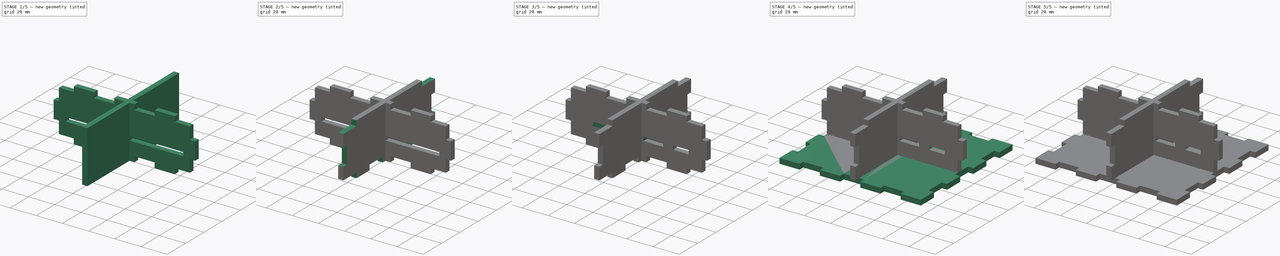
[diagram: build sequence overview — one tinted view per stage of 5, left to right]
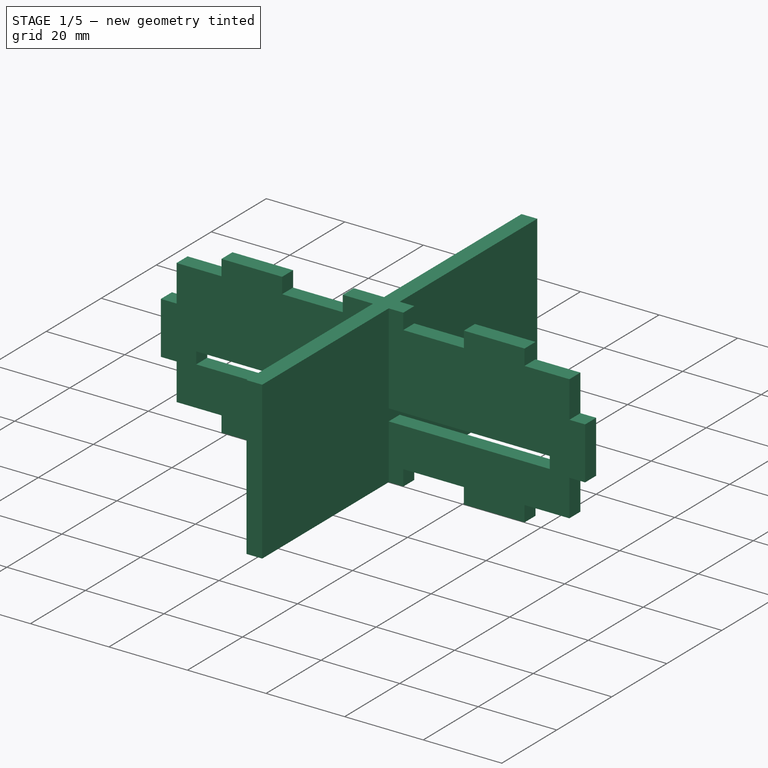
[diagram: stage 1 of 5 — iso view after this stage's code; geometry added in this stage tinted green]
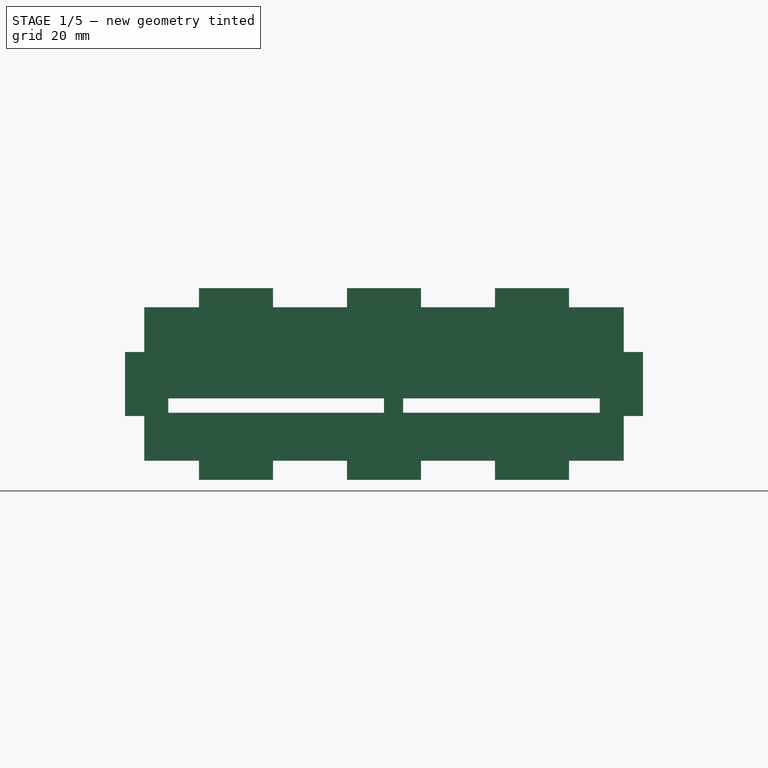
[diagram: stage 1 of 5 — front view after this stage's code; geometry added in this stage tinted green]
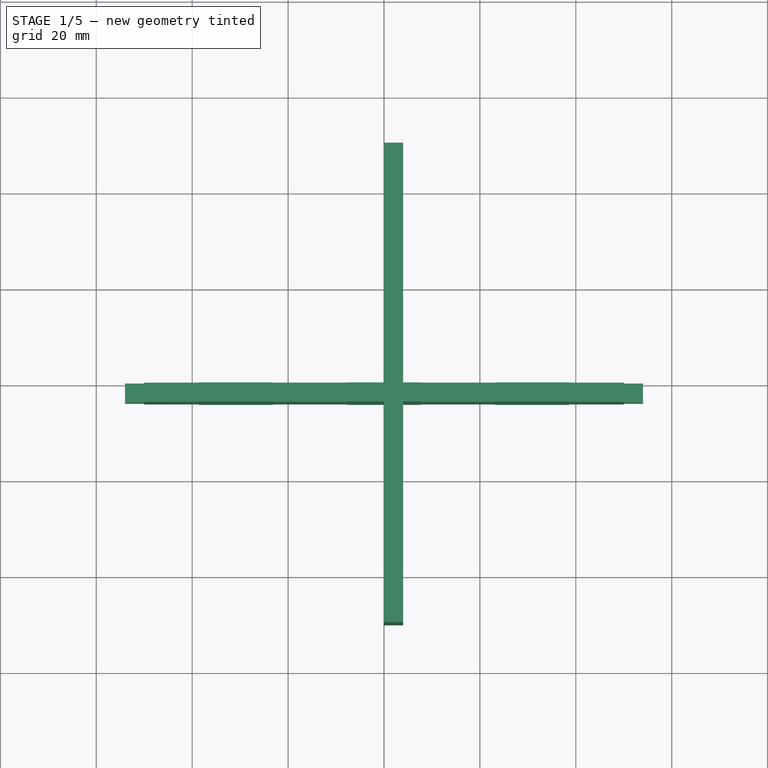
[diagram: stage 1 of 5 — top view after this stage's code; geometry added in this stage tinted green]
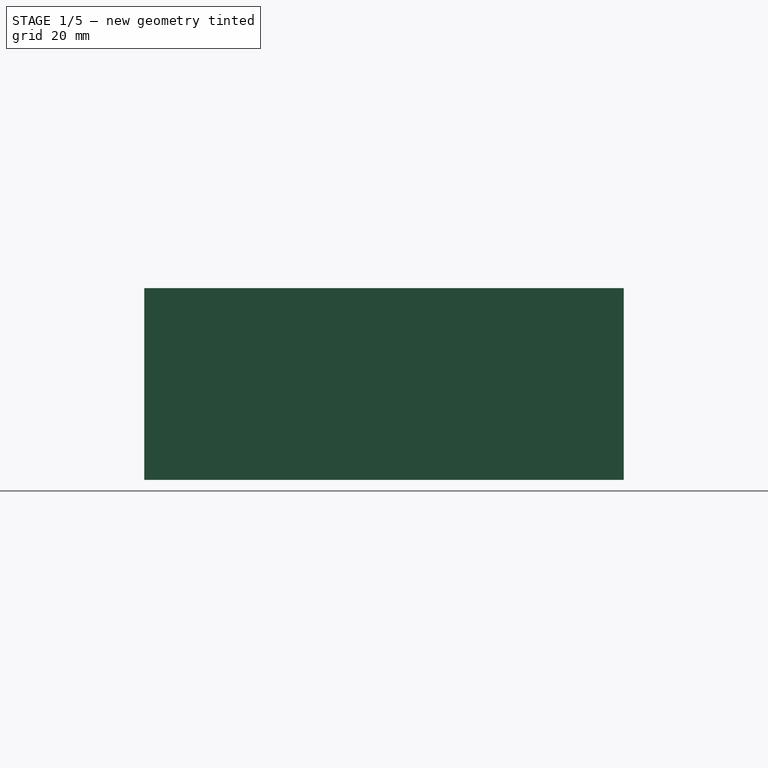
[diagram: stage 1 of 5 — right view after this stage's code; geometry added in this stage tinted green]
FCSTD DOCUMENT  (FreeCAD 0.21R33668 +26 (Git))
Label: Housing
License: All rights reserved
LicenseURL: https://en.wikipedia.org/wiki/All_rights_reserved
objects: Sketcher::SketchObject×24, PartDesign::Pocket×18, PartDesign::Pad×6, PartDesign::Body×6, Part::Part2DObjectPython×5
note: 83 computed .brp shape members not serialized (recipe doc carries the construction recipe); baked Part::Feature solids carry a one-line shape summary decoded from their .brp

FEATURE [Sketcher::SketchObject] Sketch018
  FullyConstrained = true
  MapMode = 5
  Placement = pos=(0,0,0) rot=(0.57735,0.57735,0.57735;2.0944rad)
  Support = -> [YZ_Plane006]
  sketch-geometry (4):
    g0: LineSegment StartX=-50 StartY=0 StartZ=0 EndX=50 EndY=0 EndZ=0
    g1: LineSegment StartX=50 StartY=0 StartZ=0 EndX=50 EndY=40 EndZ=0
    g2: LineSegment StartX=50 StartY=40 StartZ=0 EndX=-50 EndY=40 EndZ=0
    g3: LineSegment StartX=-50 StartY=40 StartZ=0 EndX=-50 EndY=0 EndZ=0
  constraints (11):
    c: Coincident(g0,g1)
    c: Coincident(g1,g2)
    c: Coincident(g2,g3)
    c: Coincident(g3,g0)
    c: Horizontal(g0)
    c: Vertical(g1)
    c: Vertical(g3)
    c: PointOnObject(g0,g-1)
    c: DistanceX(g0,g0) = 100
    c: DistanceY(g1,g1) = 40
    c: Symmetric(g2,g1,g-2)
FEATURE [PartDesign::Pad] Pad006
  Direction = (1,-2e-16,3e-16)
  Length = 4
  Length2 = 10
  Placement = pos=(0,0,0) rot=(0.57735,0.57735,0.57735;2.0944rad)
  Profile = -> Sketch018
  ReferenceAxis = -> Sketch018 [N_Axis]
  Type = 0
FEATURE [PartDesign::Body] Body006  label="RightSide"
  Group = -> [Sketch018,Pad006,Sketch019,Pocket011,Sketch020,Pocket012]
  Origin = -> Origin006
  Placement = pos=(50,0,0) rot=(0,0,1;0rad)
  Tip = -> Pocket012
FEATURE [Sketcher::SketchObject] Sketch021
  FullyConstrained = true
  MapMode = 5
  Placement = pos=(0,0,0) rot=(1,0,0;1.5708rad)
  Support = -> [XZ_Plane007]
  sketch-geometry (4):
    g0: LineSegment StartX=-54 StartY=40 StartZ=0 EndX=54 EndY=40 EndZ=0
    g1: LineSegment StartX=54 StartY=40 StartZ=0 EndX=54 EndY=0 EndZ=0
    g2: LineSegment StartX=54 StartY=0 StartZ=0 EndX=-54 EndY=0 EndZ=0
    g3: LineSegment StartX=-54 StartY=0 StartZ=0 EndX=-54 EndY=40 EndZ=0
  constraints (11):
    c: Coincident(g0,g1)
    c: Coincident(g1,g2)
    c: Coincident(g2,g3)
    c: Coincident(g3,g0)
    c: Horizontal(g2)
    c: Vertical(g1)
    c: Vertical(g3)
    c: DistanceX(g2,g2) = 108
    c: DistanceY(g1,g1) = 40
    c: Symmetric(g0,g0,g-2)
    c: PointOnObject(g-1,g2)
FEATURE [PartDesign::Pad] Pad007
  Direction = (0,-1,-2e-16)
  Length = 4
  Length2 = 10
  Placement = pos=(0,0,0) rot=(1,0,0;1.5708rad)
  Profile = -> Sketch021
  ReferenceAxis = -> Sketch021 [N_Axis]
  Type = 0
FEATURE [Sketcher::SketchObject] Sketch022
  ExternalGeometry = -> [Pad007]
  FullyConstrained = true
  MapMode = 5
  Placement = pos=(0,-4,0) rot=(1,0,0;1.5708rad)
  Support = -> [Pad007]
  sketch-geometry (38):
    g0: LineSegment StartX=-54 StartY=40 StartZ=0 EndX=-38.5714 EndY=40 EndZ=0
    g1: LineSegment StartX=-38.5714 StartY=40 StartZ=0 EndX=-38.5714 EndY=36 EndZ=0
    g2: LineSegment StartX=-38.5714 StartY=36 StartZ=0 EndX=-54 EndY=36 EndZ=0
    g3: LineSegment StartX=-54 StartY=36 StartZ=0 EndX=-54 EndY=40 EndZ=0
    g4: LineSegment StartX=54 StartY=40 StartZ=0 EndX=38.5714 EndY=40 EndZ=0
    g5: LineSegment StartX=38.5714 StartY=40 StartZ=0 EndX=38.5714 EndY=36 EndZ=0
    g6: LineSegment StartX=38.5714 StartY=36 StartZ=0 EndX=54 EndY=36 EndZ=0
    g7: LineSegment StartX=54 StartY=36 StartZ=0 EndX=54 EndY=40 EndZ=0
    g8: LineSegment StartX=23.1429 StartY=40 StartZ=0 EndX=7.71429 EndY=40 EndZ=0
    g9: LineSegment StartX=7.71429 StartY=40 StartZ=0 EndX=7.71429 EndY=36 EndZ=0
    g10: LineSegment StartX=7.71429 StartY=36 StartZ=0 EndX=23.1429 EndY=36 EndZ=0
    g11: LineSegment StartX=23.1429 StartY=36 StartZ=0 EndX=23.1429 EndY=40 EndZ=0
    g12: LineSegment StartX=-7.71429 StartY=40 StartZ=0 EndX=-23.1429 EndY=40 EndZ=0
    g13: LineSegment StartX=-23.1429 StartY=40 StartZ=0 EndX=-23.1429 EndY=36 EndZ=0
    g14: LineSegment StartX=-23.1429 StartY=36 StartZ=0 EndX=-7.71429 EndY=36 EndZ=0
    g15: LineSegment StartX=-7.71429 StartY=36 StartZ=0 EndX=-7.71429 EndY=40 EndZ=0
    g16: LineSegment StartX=-54 StartY=0 StartZ=0 EndX=-38.5714 EndY=0 EndZ=0
    g17: LineSegment StartX=-38.5714 StartY=0 StartZ=0 EndX=-38.5714 EndY=4 EndZ=0
    g18: LineSegment StartX=-38.5714 StartY=4 StartZ=0 EndX=-54 EndY=4 EndZ=0
    g19: LineSegment StartX=-54 StartY=4 StartZ=0 EndX=-54 EndY=0 EndZ=0
    g20: LineSegment StartX=-23.1429 StartY=0 StartZ=0 EndX=-7.71429 EndY=0 EndZ=0
    g21: LineSegment StartX=-7.71429 StartY=0 StartZ=0 EndX=-7.71429 EndY=4 EndZ=0
    g22: LineSegment StartX=-7.71429 StartY=4 StartZ=0 EndX=-23.1429 EndY=4 EndZ=0
    g23: LineSegment StartX=-23.1429 StartY=4 StartZ=0 EndX=-23.1429 EndY=0 EndZ=0
    g24: LineSegment StartX=7.71429 StartY=0 StartZ=0 EndX=23.1429 EndY=0 EndZ=0
    g25: LineSegment StartX=23.1429 StartY=0 StartZ=0 EndX=23.1429 EndY=4 EndZ=0
    g26: LineSegment StartX=23.1429 StartY=4 StartZ=0 EndX=7.71429 EndY=4 EndZ=0
    g27: LineSegment StartX=7.71429 StartY=4 StartZ=0 EndX=7.71429 EndY=0 EndZ=0
    g28: LineSegment StartX=38.5714 StartY=0 StartZ=0 EndX=54 EndY=0 EndZ=0
    g29: LineSegment StartX=54 StartY=0 StartZ=0 EndX=54 EndY=4 EndZ=0
    g30: LineSegment StartX=54 StartY=4 StartZ=0 EndX=38.5714 EndY=4 EndZ=0
    g31: LineSegment StartX=38.5714 StartY=4 StartZ=0 EndX=38.5714 EndY=0 EndZ=0
    g32: LineSegment StartX=-38.5714 StartY=40 StartZ=0 EndX=-23.1429 EndY=40 EndZ=0
    g33: LineSegment StartX=-7.71429 StartY=40 StartZ=0 EndX=7.71429 EndY=40 EndZ=0
    g34: LineSegment StartX=23.1429 StartY=40 StartZ=0 EndX=38.5714 EndY=40 EndZ=0
    g35: LineSegment StartX=23.1429 StartY=0 StartZ=0 EndX=38.5714 EndY=0 EndZ=0
    g36: LineSegment StartX=7.71429 StartY=0 StartZ=0 EndX=-7.71429 EndY=0 EndZ=0
    g37: LineSegment StartX=-23.1429 StartY=0 StartZ=0 EndX=-38.5714 EndY=0 EndZ=0
  constraints (105):
    c: Coincident(g0,g1)
    c: Coincident(g1,g2)
    c: Coincident(g2,g3)
    c: Coincident(g3,g0)
    c: Horizontal(g0)
    c: Horizontal(g2)
    c: Vertical(g1)
    c: Vertical(g3)
    c: Coincident(g0,g-4)
    c: Coincident(g4,g5)
    c: Coincident(g5,g6)
    c: Coincident(g6,g7)
    c: Coincident(g7,g4)
    c: Horizontal(g4)
    c: Horizontal(g6)
    c: Vertical(g5)
    c: Vertical(g7)
    c: Coincident(g4,g-6)
    c: Coincident(g8,g9)
    c: Coincident(g9,g10)
    c: Coincident(g10,g11)
    c: Coincident(g11,g8)
    c: Horizontal(g8)
    c: Horizontal(g10)
    c: Vertical(g9)
    c: Vertical(g11)
    c: PointOnObject(g8,g-3)
    c: Coincident(g12,g13)
    c: Coincident(g13,g14)
    c: Coincident(g14,g15)
    c: Coincident(g15,g12)
    c: Horizontal(g12)
    c: Horizontal(g14)
    c: Vertical(g13)
    c: Vertical(g15)
    c: PointOnObject(g12,g-3)
    c: Coincident(g16,g17)
    c: Coincident(g17,g18)
    c: Coincident(g18,g19)
    c: Coincident(g19,g16)
    c: Horizontal(g16)
    c: Horizontal(g18)
    c: Vertical(g17)
    c: Vertical(g19)
    c: Coincident(g16,g-5)
    c: Coincident(g20,g21)
    c: Coincident(g21,g22)
    c: Coincident(g22,g23)
    c: Coincident(g23,g20)
    c: Horizontal(g20)
    c: Horizontal(g22)
    c: Vertical(g21)
    c: Vertical(g23)
    c: PointOnObject(g20,g-5)
    c: Coincident(g24,g25)
    c: Coincident(g25,g26)
    c: Coincident(g26,g27)
    c: Coincident(g27,g24)
    c: Horizontal(g24)
    c: Horizontal(g26)
    c: Vertical(g25)
    c: Vertical(g27)
    c: PointOnObject(g24,g-5)
    c: Coincident(g28,g29)
    c: Coincident(g29,g30)
    c: Coincident(g30,g31)
    c: Coincident(g31,g28)
    c: Horizontal(g28)
    c: Horizontal(g30)
    c: Vertical(g29)
    c: Vertical(g31)
    c: PointOnObject(g28,g-5)
    c: PointOnObject(g29,g-6)
    c: Coincident(g32,g0)
    c: Coincident(g32,g12)
    c: Coincident(g33,g12)
    c: Coincident(g33,g8)
    c: Coincident(g34,g8)
    c: Coincident(g34,g4)
    c: Coincident(g35,g24)
    c: Coincident(g35,g28)
    c: Coincident(g36,g24)
    c: Coincident(g36,g20)
    c: Coincident(g37,g20)
    c: Coincident(g37,g16)
    c: Equal(g0,g32)
    c: Equal(g32,g12)
    c: Equal(g12,g33)
    c: Equal(g33,g8)
    c: Equal(g8,g4)
    c: Equal(g4,g34)
    c: Equal(g34,g28)
    c: Equal(g28,g35)
    c: Equal(g35,g24)
    c: Equal(g24,g36)
    c: Equal(g36,g20)
    c: Equal(g20,g37)
    c: Equal(g21,g1)
    c: Equal(g1,g17)
    c: Equal(g17,g15)
    c: Equal(g15,g11)
    c: Equal(g11,g25)
    c: Equal(g25,g29)
    c: Equal(g29,g7)
    c: DistanceY(g7,g7) = 4
FEATURE [PartDesign::Pocket] Pocket013
  BaseFeature = -> Pad007
  Direction = (0,1,2e-16)
  Length = 5
  Length2 = 5
  Placement = pos=(0,0,0) rot=(1,0,0;1.5708rad)
  Profile = -> Sketch022
  ReferenceAxis = -> Sketch022 [N_Axis]
  Type = 2
FEATURE [Sketcher::SketchObject] Sketch023
  ExternalGeometry = -> [Pocket013]
  FullyConstrained = true
  MapMode = 5
  Placement = pos=(0,-4,0) rot=(1,0,0;1.5708rad)
  Support = -> [Pocket013]
  sketch-geometry (18):
    g0: LineSegment StartX=50 StartY=40 StartZ=0 EndX=54 EndY=40 EndZ=0
    g1: LineSegment StartX=54 StartY=40 StartZ=0 EndX=54 EndY=26.6667 EndZ=0
    g2: LineSegment StartX=54 StartY=26.6667 StartZ=0 EndX=50 EndY=26.6667 EndZ=0
    g3: LineSegment StartX=50 StartY=26.6667 StartZ=0 EndX=50 EndY=40 EndZ=0
    g4: LineSegment StartX=54 StartY=0 StartZ=0 EndX=50 EndY=0 EndZ=0
    g5: LineSegment StartX=50 StartY=0 StartZ=0 EndX=50 EndY=13.3333 EndZ=0
    g6: LineSegment StartX=50 StartY=13.3333 StartZ=0 EndX=54 EndY=13.3333 EndZ=0
    g7: LineSegment StartX=54 StartY=13.3333 StartZ=0 EndX=54 EndY=0 EndZ=0
    g8: LineSegment StartX=-54 StartY=0 StartZ=0 EndX=-50 EndY=0 EndZ=0
    g9: LineSegment StartX=-50 StartY=0 StartZ=0 EndX=-50 EndY=13.3333 EndZ=0
    g10: LineSegment StartX=-50 StartY=13.3333 StartZ=0 EndX=-54 EndY=13.3333 EndZ=0
    g11: LineSegment StartX=-54 StartY=13.3333 StartZ=0 EndX=-54 EndY=0 EndZ=0
    g12: LineSegment StartX=-54 StartY=40 StartZ=0 EndX=-50 EndY=40 EndZ=0
    g13: LineSegment StartX=-50 StartY=40 StartZ=0 EndX=-50 EndY=26.6667 EndZ=0
    g14: LineSegment StartX=-50 StartY=26.6667 StartZ=0 EndX=-54 EndY=26.6667 EndZ=0
    g15: LineSegment StartX=-54 StartY=26.6667 StartZ=0 EndX=-54 EndY=40 EndZ=0
    g16: LineSegment StartX=-54 StartY=26.6667 StartZ=0 EndX=-54 EndY=13.3333 EndZ=0
    g17: LineSegment StartX=54 StartY=26.6667 StartZ=0 EndX=54 EndY=13.3333 EndZ=0
  constraints (50):
    c: Coincident(g0,g1)
    c: Coincident(g1,g2)
    c: Coincident(g2,g3)
    c: Coincident(g3,g0)
    c: Horizontal(g0)
    c: Horizontal(g2)
    c: Vertical(g1)
    c: Vertical(g3)
    c: Coincident(g4,g5)
    c: Coincident(g5,g6)
    c: Coincident(g6,g7)
    c: Coincident(g7,g4)
    c: Horizontal(g4)
    c: Horizontal(g6)
    c: Vertical(g5)
    c: Vertical(g7)
    c: PointOnObject(g4,g-1)
    c: Coincident(g8,g9)
    c: Coincident(g9,g10)
    c: Coincident(g10,g11)
    c: Coincident(g11,g8)
    c: Horizontal(g8)
    c: Horizontal(g10)
    c: Vertical(g9)
    c: Vertical(g11)
    c: PointOnObject(g8,g-1)
    c: Coincident(g12,g13)
    c: Coincident(g13,g14)
    c: Coincident(g14,g15)
    c: Coincident(g15,g12)
    c: Horizontal(g12)
    c: Horizontal(g14)
    c: Vertical(g13)
    c: Vertical(g15)
    c: PointOnObject(g-6,g12)
    c: PointOnObject(g-9,g0)
    c: Equal(g10,g14)
    c: Equal(g14,g2)
    c: Equal(g2,g6)
    c: Coincident(g16,g14)
    c: Coincident(g16,g10)
    c: Coincident(g17,g1)
    c: Coincident(g17,g6)
    c: DistanceX(g0,g0) = 4
    c: Tangent(g17,g-11)
    c: Tangent(g16,g-10)
    c: Equal(g1,g17)
    c: Equal(g17,g7)
    c: Equal(g7,g15)
    c: Equal(g15,g16)
FEATURE [PartDesign::Pocket] Pocket014
  BaseFeature = -> Pocket013
  Direction = (0,1,2e-16)
  Length = 5
  Length2 = 5
  Placement = pos=(0,0,0) rot=(1,0,0;1.5708rad)
  Profile = -> Sketch023
  ReferenceAxis = -> Sketch023 [N_Axis]
  Type = 2
FEATURE [Sketcher::SketchObject] Sketch025
  ExternalGeometry = -> [Pocket014]
  FullyConstrained = true
  MapMode = 5
  Placement = pos=(0,0,0) rot=(-1,0,0;1.5708rad)
  Support = -> [Pocket014]
  sketch-geometry (4):
    g0: LineSegment StartX=45 StartY=-17 StartZ=0 EndX=-45 EndY=-17 EndZ=0
    g1: LineSegment StartX=-45 StartY=-17 StartZ=0 EndX=-45 EndY=-14 EndZ=0
    g2: LineSegment StartX=-45 StartY=-14 StartZ=0 EndX=45 EndY=-14 EndZ=0
    g3: LineSegment StartX=45 StartY=-14 StartZ=0 EndX=45 EndY=-17 EndZ=0
  constraints (11):
    c: Coincident(g0,g1)
    c: Coincident(g1,g2)
    c: Coincident(g2,g3)
    c: Coincident(g3,g0)
    c: Horizontal(g2)
    c: Vertical(g1)
    c: Vertical(g3)
    c: Symmetric(g0,g0,g-2)
    c: DistanceY(g3,g3) = 3
    c: DistanceX(g0,g0) = 90
    c: DistanceY(g1,g-4) = 10
FEATURE [PartDesign::Pocket] Pocket016
  BaseFeature = -> Pocket014
  Direction = (0,-1,-2e-16)
  Length = 5
  Length2 = 5
  Placement = pos=(0,0,0) rot=(1,0,0;1.5708rad)
  Profile = -> Sketch025
  ReferenceAxis = -> Sketch025 [N_Axis]
  Type = 2
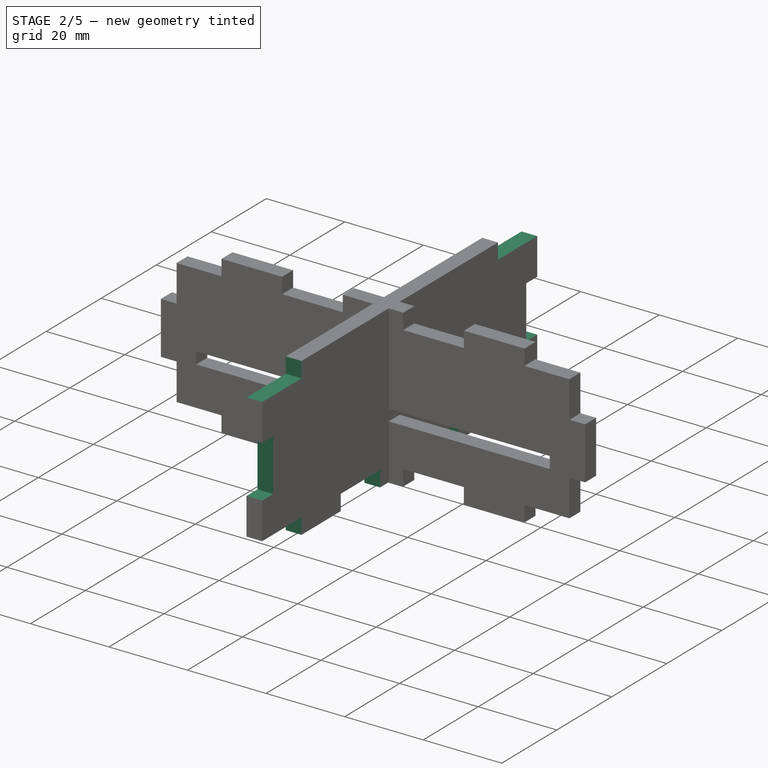
[diagram: stage 2 of 5 — iso view after this stage's code; geometry added in this stage tinted green]
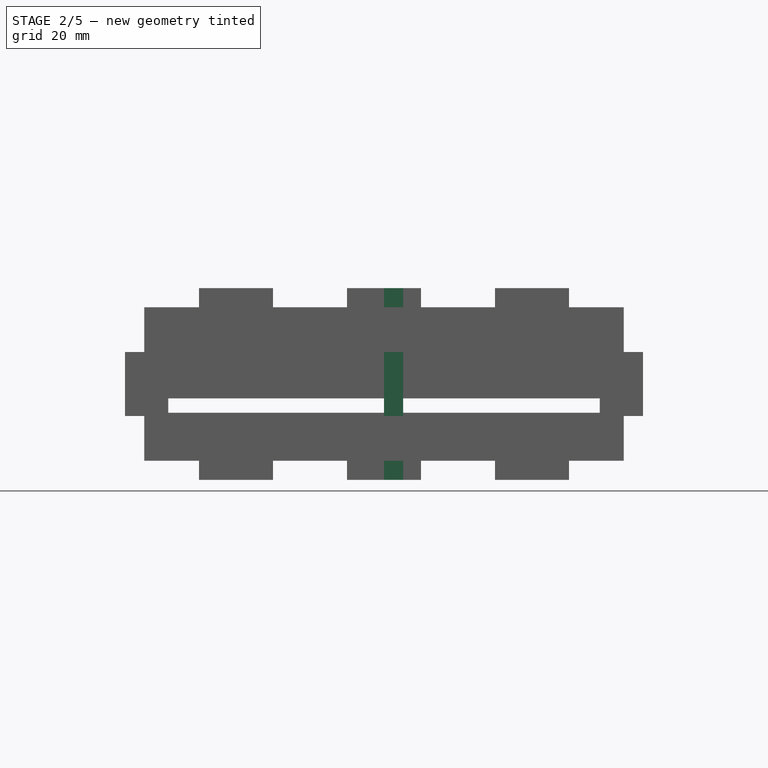
[diagram: stage 2 of 5 — front view after this stage's code; geometry added in this stage tinted green]
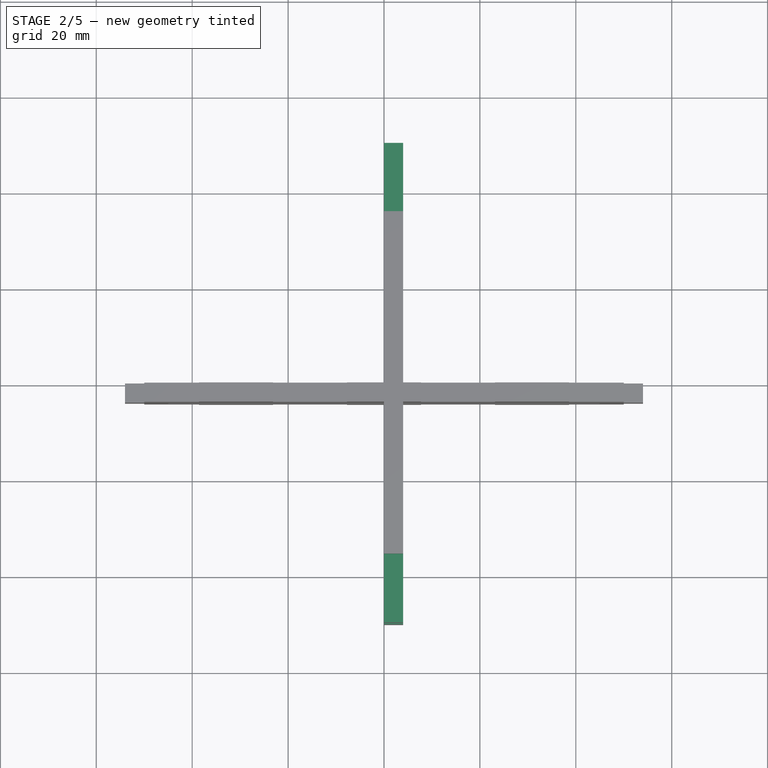
[diagram: stage 2 of 5 — top view after this stage's code; geometry added in this stage tinted green]
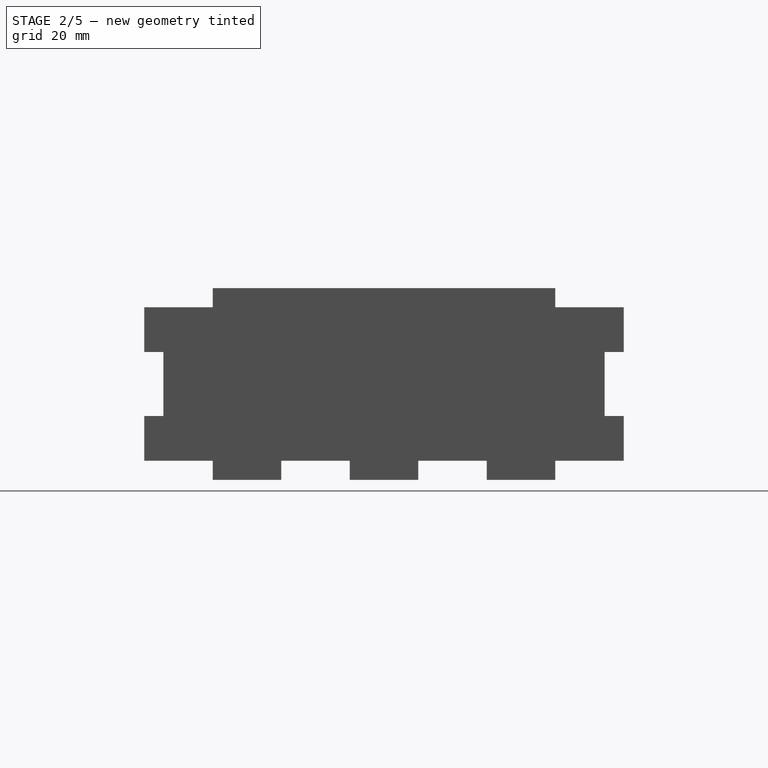
[diagram: stage 2 of 5 — right view after this stage's code; geometry added in this stage tinted green]
FEATURE [Sketcher::SketchObject] Sketch010
  FullyConstrained = true
  MapMode = 5
  Placement = pos=(0,0,0) rot=(0.57735,0.57735,0.57735;2.0944rad)
  Support = -> [YZ_Plane003]
  sketch-geometry (4):
    g0: LineSegment StartX=-50 StartY=0 StartZ=0 EndX=50 EndY=0 EndZ=0
    g1: LineSegment StartX=50 StartY=0 StartZ=0 EndX=50 EndY=40 EndZ=0
    g2: LineSegment StartX=50 StartY=40 StartZ=0 EndX=-50 EndY=40 EndZ=0
    g3: LineSegment StartX=-50 StartY=40 StartZ=0 EndX=-50 EndY=0 EndZ=0
  constraints (11):
    c: Coincident(g0,g1)
    c: Coincident(g1,g2)
    c: Coincident(g2,g3)
    c: Coincident(g3,g0)
    c: Horizontal(g0)
    c: Vertical(g1)
    c: Vertical(g3)
    c: PointOnObject(g0,g-1)
    c: DistanceX(g0,g0) = 100
    c: DistanceY(g1,g1) = 40
    c: Symmetric(g2,g1,g-2)
FEATURE [PartDesign::Pad] Pad003
  Direction = (1,-2e-16,3e-16)
  Length = 4
  Length2 = 10
  Placement = pos=(0,0,0) rot=(0.57735,0.57735,0.57735;2.0944rad)
  Profile = -> Sketch010
  ReferenceAxis = -> Sketch010 [N_Axis]
  Type = 0
FEATURE [Sketcher::SketchObject] Sketch011
  ExternalGeometry = -> [Pad003]
  FullyConstrained = true
  MapMode = 5
  Placement = pos=(0,0,0) rot=(0.57735,0.57735,-0.57735;4.18879rad)
  Support = -> [Pad003]
  sketch-geometry (33):
    g0: LineSegment StartX=-50 StartY=-2.84e-14 StartZ=0 EndX=-35.7143 EndY=-2.84e-14 EndZ=0
    g1: LineSegment StartX=-35.7143 StartY=-2.84e-14 StartZ=0 EndX=-35.7143 EndY=-4 EndZ=0
    g2: LineSegment StartX=-35.7143 StartY=-4 StartZ=0 EndX=-50 EndY=-4 EndZ=0
    g3: LineSegment StartX=-50 StartY=-4 StartZ=0 EndX=-50 EndY=-2.84e-14 EndZ=0
    g4: LineSegment StartX=-21.4286 StartY=0 StartZ=0 EndX=-7.14286 EndY=0 EndZ=0
    g5: LineSegment StartX=-7.14286 StartY=0 StartZ=0 EndX=-7.14286 EndY=-4 EndZ=0
    g6: LineSegment StartX=-7.14286 StartY=-4 StartZ=0 EndX=-21.4286 EndY=-4 EndZ=0
    g7: LineSegment StartX=-21.4286 StartY=-4 StartZ=0 EndX=-21.4286 EndY=0 EndZ=0
    g8: LineSegment StartX=7.14286 StartY=0 StartZ=0 EndX=21.4286 EndY=0 EndZ=0
    g9: LineSegment StartX=21.4286 StartY=0 StartZ=0 EndX=21.4286 EndY=-4 EndZ=0
    g10: LineSegment StartX=21.4286 StartY=-4 StartZ=0 EndX=7.14286 EndY=-4 EndZ=0
    g11: LineSegment StartX=7.14286 StartY=-4 StartZ=0 EndX=7.14286 EndY=0 EndZ=0
    g12: LineSegment StartX=50 StartY=2.78e-14 StartZ=0 EndX=35.7143 EndY=2.78e-14 EndZ=0
    g13: LineSegment StartX=35.7143 StartY=2.78e-14 StartZ=0 EndX=35.7143 EndY=-4 EndZ=0
    g14: LineSegment StartX=35.7143 StartY=-4 StartZ=0 EndX=50 EndY=-4 EndZ=0
    g15: LineSegment StartX=50 StartY=-4 StartZ=0 EndX=50 EndY=2.8e-14 EndZ=0
    g16: LineSegment StartX=-50 StartY=-40 StartZ=0 EndX=-35.7143 EndY=-40 EndZ=0
    g17: LineSegment StartX=-35.7143 StartY=-40 StartZ=0 EndX=-35.7143 EndY=-36 EndZ=0
    g18: LineSegment StartX=-35.7143 StartY=-36 StartZ=0 EndX=-50 EndY=-36 EndZ=0
    g19: LineSegment StartX=-50 StartY=-36 StartZ=0 EndX=-50 EndY=-40 EndZ=0
    g20: LineSegment StartX=-21.4286 StartY=-40 StartZ=0 EndX=-7.14286 EndY=-40 EndZ=0
    g21: LineSegment StartX=50 StartY=-40 StartZ=0 EndX=35.7143 EndY=-40 EndZ=0
    g22: LineSegment StartX=35.7143 StartY=-40 StartZ=0 EndX=35.7143 EndY=-36 EndZ=0
    g23: LineSegment StartX=35.7143 StartY=-36 StartZ=0 EndX=50 EndY=-36 EndZ=0
    g24: LineSegment StartX=50 StartY=-36 StartZ=0 EndX=50 EndY=-40 EndZ=0
    g25: LineSegment StartX=-35.7143 StartY=-2.84e-14 StartZ=0 EndX=-21.4286 EndY=0 EndZ=0
    g26: LineSegment StartX=-7.14286 StartY=0 StartZ=0 EndX=7.14286 EndY=0 EndZ=0
    g27: LineSegment StartX=21.4286 StartY=0 StartZ=0 EndX=35.7143 EndY=2.78e-14 EndZ=0
    g28: LineSegment StartX=-35.7143 StartY=-40 StartZ=0 EndX=-21.4286 EndY=-40 EndZ=0
    g29: LineSegment StartX=-7.14286 StartY=-40 StartZ=0 EndX=7.14286 EndY=-40 EndZ=0
    g30: LineSegment StartX=21.4286 StartY=-40 StartZ=0 EndX=35.7143 EndY=-40 EndZ=0
    g31: LineSegment StartX=7.14286 StartY=0 StartZ=0 EndX=21.4286 EndY=0 EndZ=0
    g32: LineSegment StartX=7.14286 StartY=-40 StartZ=0 EndX=21.4286 EndY=-40 EndZ=0
  constraints (90):
    c: Coincident(g0,g1)
    c: Coincident(g1,g2)
    c: Coincident(g2,g3)
    c: Coincident(g3,g0)
    c: Horizontal(g0)
    c: Horizontal(g2)
    c: Vertical(g1)
    c: Vertical(g3)
    c: Coincident(g0,g-3)
    c: Coincident(g4,g5)
    c: Coincident(g5,g6)
    c: Coincident(g6,g7)
    c: Coincident(g7,g4)
    c: Horizontal(g4)
    c: Horizontal(g6)
    c: Vertical(g5)
    c: Vertical(g7)
    c: PointOnObject(g4,g-1)
    c: Coincident(g8,g9)
    c: Coincident(g9,g10)
    c: Coincident(g10,g11)
    c: Coincident(g11,g8)
    c: Horizontal(g10)
    c: Vertical(g9)
    c: Vertical(g11)
    c: PointOnObject(g8,g-1)
    c: Coincident(g12,g13)
    c: Coincident(g13,g14)
    c: Coincident(g14,g15)
    c: Coincident(g15,g12)
    c: Horizontal(g12)
    c: Horizontal(g14)
    c: Vertical(g13)
    c: Vertical(g15)
    c: Coincident(g12,g-4)
    c: Coincident(g16,g17)
    c: Coincident(g17,g18)
    c: Coincident(g18,g19)
    c: Coincident(g19,g16)
    c: Horizontal(g16)
    c: Horizontal(g18)
    c: Vertical(g17)
    c: Vertical(g19)
    c: Coincident(g16,g-3)
    c: Horizontal(g20)
    c: Coincident(g21,g22)
    c: Coincident(g22,g23)
    c: Coincident(g23,g24)
    c: Coincident(g24,g21)
    c: Horizontal(g21)
    c: Horizontal(g23)
    c: Vertical(g22)
    c: Vertical(g24)
    c: Coincident(g21,g-4)
    c: Coincident(g25,g0)
    c: Coincident(g25,g4)
    c: Coincident(g26,g4)
    c: Coincident(g26,g8)
    c: Coincident(g27,g8)
    c: Coincident(g27,g12)
    c: Coincident(g28,g16)
    c: Coincident(g28,g20)
    c: Horizontal(g28)
    c: Coincident(g29,g20)
    c: Horizontal(g29)
    c: Coincident(g30,g21)
    c: Equal(g0,g25)
    c: Equal(g25,g4)
    c: Equal(g4,g26)
    c: Equal(g26,g8)
    c: Equal(g8,g27)
    c: Equal(g27,g12)
    c: Equal(g21,g30)
    c: Equal(g29,g20)
    c: Equal(g20,g28)
    c: Equal(g28,g16)
    c: Equal(g1,g5)
    c: Equal(g5,g9)
    c: Equal(g9,g15)
    c: Equal(g15,g24)
    c: DistanceY(g24,g24) = 4
    c: Coincident(g31,g11)
    c: Coincident(g31,g9)
    c: PointOnObject(g9,g-1)
    c: Coincident(g32,g29)
    c: Coincident(g32,g30)
    c: Horizontal(g32)
    c: Equal(g32,g30)
    c: Equal(g30,g29)
    c: Equal(g17,g22)
FEATURE [PartDesign::Pocket] Pocket006
  BaseFeature = -> Pad003
  Direction = (1,-4e-16,4e-16)
  Length = 5
  Length2 = 5
  Placement = pos=(0,0,0) rot=(0.57735,0.57735,0.57735;2.0944rad)
  Profile = -> Sketch011
  ReferenceAxis = -> Sketch011 [N_Axis]
  Type = 2
FEATURE [Sketcher::SketchObject] Sketch012
  ExternalGeometry = -> [Pocket006]
  FullyConstrained = true
  MapMode = 5
  Placement = pos=(0,0,0) rot=(0.57735,0.57735,-0.57735;4.18879rad)
  Support = -> [Pocket006]
  sketch-geometry (12):
    g0: LineSegment StartX=-50 StartY=-13.3333 StartZ=0 EndX=-46 EndY=-13.3333 EndZ=0
    g1: LineSegment StartX=-46 StartY=-13.3333 StartZ=0 EndX=-46 EndY=-26.6667 EndZ=0
    g2: LineSegment StartX=-46 StartY=-26.6667 StartZ=0 EndX=-50 EndY=-26.6667 EndZ=0
    g3: LineSegment StartX=-50 StartY=-26.6667 StartZ=0 EndX=-50 EndY=-13.3333 EndZ=0
    g4: LineSegment StartX=50 StartY=-13.3333 StartZ=0 EndX=46 EndY=-13.3333 EndZ=0
    g5: LineSegment StartX=46 StartY=-13.3333 StartZ=0 EndX=46 EndY=-26.6667 EndZ=0
    g6: LineSegment StartX=46 StartY=-26.6667 StartZ=0 EndX=50 EndY=-26.6667 EndZ=0
    g7: LineSegment StartX=50 StartY=-26.6667 StartZ=0 EndX=50 EndY=-13.3333 EndZ=0
    g8: LineSegment StartX=-50 StartY=0 StartZ=0 EndX=-50 EndY=-13.3333 EndZ=0
    g9: LineSegment StartX=-50 StartY=-26.6667 StartZ=0 EndX=-50 EndY=-40 EndZ=0
    g10: LineSegment StartX=50 StartY=-13.3333 StartZ=0 EndX=50 EndY=0 EndZ=0
    g11: LineSegment StartX=-35.7143 StartY=-40 StartZ=0 EndX=-50 EndY=-40 EndZ=0
  constraints (33):
    c: Coincident(g0,g1)
    c: Coincident(g1,g2)
    c: Coincident(g2,g3)
    c: Coincident(g3,g0)
    c: Horizontal(g2)
    c: Coincident(g4,g5)
    c: Coincident(g5,g6)
    c: Coincident(g6,g7)
    c: Coincident(g7,g4)
    c: Horizontal(g4)
    c: Horizontal(g6)
    c: Vertical(g5)
    c: Coincident(g8,g0)
    c: Vertical(g8)
    c: Coincident(g9,g2)
    c: Vertical(g9)
    c: Coincident(g10,g4)
    c: Vertical(g10)
    c: Equal(g10,g8)
    c: Equal(g8,g3)
    c: Equal(g3,g9)
    c: Equal(g9,g7)
    c: DistanceX(g4,g4) = 4
    c: Coincident(g11,g-6)
    c: Coincident(g11,g9)
    c: Horizontal(g11)
    c: PointOnObject(g10,g-1)
    c: PointOnObject(g8,g-1)
    c: Vertical(g1)
    c: Horizontal(g0)
    c: Tangent(g3,g-4)
    c: Tangent(g-11,g7)
    c: Equal(g0,g4)
FEATURE [PartDesign::Pocket] Pocket007
  BaseFeature = -> Pocket006
  Direction = (1,-6e-16,5e-16)
  Length = 5
  Length2 = 5
  Placement = pos=(0,0,0) rot=(0.57735,0.57735,0.57735;2.0944rad)
  Profile = -> Sketch012
  ReferenceAxis = -> Sketch012 [N_Axis]
  Type = 2
FEATURE [Sketcher::SketchObject] Sketch019
  ExternalGeometry = -> [Pad006]
  FullyConstrained = true
  MapMode = 5
  Placement = pos=(0,0,0) rot=(0.57735,0.57735,-0.57735;4.18879rad)
  Support = -> [Pad006]
  sketch-geometry (38):
    g0: LineSegment StartX=-50 StartY=-2.84e-14 StartZ=0 EndX=-35.7143 EndY=-2.84e-14 EndZ=0
    g1: LineSegment StartX=-35.7143 StartY=-2.84e-14 StartZ=0 EndX=-35.7143 EndY=-4 EndZ=0
    g2: LineSegment StartX=-35.7143 StartY=-4 StartZ=0 EndX=-50 EndY=-4 EndZ=0
    g3: LineSegment StartX=-50 StartY=-4 StartZ=0 EndX=-50 EndY=-2.84e-14 EndZ=0
    g4: LineSegment StartX=-21.4286 StartY=0 StartZ=0 EndX=-7.14286 EndY=0 EndZ=0
    g5: LineSegment StartX=-7.14286 StartY=0 StartZ=0 EndX=-7.14286 EndY=-4 EndZ=0
    g6: LineSegment StartX=-7.14286 StartY=-4 StartZ=0 EndX=-21.4286 EndY=-4 EndZ=0
    g7: LineSegment StartX=-21.4286 StartY=-4 StartZ=0 EndX=-21.4286 EndY=0 EndZ=0
    g8: LineSegment StartX=7.14286 StartY=0 StartZ=0 EndX=21.4286 EndY=0 EndZ=0
    g9: LineSegment StartX=21.4286 StartY=0 StartZ=0 EndX=21.4286 EndY=-4 EndZ=0
    g10: LineSegment StartX=21.4286 StartY=-4 StartZ=0 EndX=7.14286 EndY=-4 EndZ=0
    g11: LineSegment StartX=7.14286 StartY=-4 StartZ=0 EndX=7.14286 EndY=0 EndZ=0
    g12: LineSegment StartX=50 StartY=2.78e-14 StartZ=0 EndX=35.7143 EndY=2.78e-14 EndZ=0
    g13: LineSegment StartX=35.7143 StartY=2.78e-14 StartZ=0 EndX=35.7143 EndY=-4 EndZ=0
    g14: LineSegment StartX=35.7143 StartY=-4 StartZ=0 EndX=50 EndY=-4 EndZ=0
    g15: LineSegment StartX=50 StartY=-4 StartZ=0 EndX=50 EndY=2.75e-14 EndZ=0
    g16: LineSegment StartX=-50 StartY=-40 StartZ=0 EndX=-35.7143 EndY=-40 EndZ=0
    g17: LineSegment StartX=-35.7143 StartY=-40 StartZ=0 EndX=-35.7143 EndY=-36 EndZ=0
    g18: LineSegment StartX=-35.7143 StartY=-36 StartZ=0 EndX=-50 EndY=-36 EndZ=0
    g19: LineSegment StartX=-50 StartY=-36 StartZ=0 EndX=-50 EndY=-40 EndZ=0
    g20: LineSegment StartX=-21.4286 StartY=-40 StartZ=0 EndX=-7.14286 EndY=-40 EndZ=0
    g21: LineSegment StartX=-7.14286 StartY=-40 StartZ=0 EndX=-7.14286 EndY=-36 EndZ=0
    g22: LineSegment StartX=-7.14286 StartY=-36 StartZ=0 EndX=-21.4286 EndY=-36 EndZ=0
    g23: LineSegment StartX=-21.4286 StartY=-36 StartZ=0 EndX=-21.4286 EndY=-40 EndZ=0
    g24: LineSegment StartX=7.14286 StartY=-40 StartZ=0 EndX=21.4286 EndY=-40 EndZ=0
    g25: LineSegment StartX=21.4286 StartY=-40 StartZ=0 EndX=21.4286 EndY=-36 EndZ=0
    g26: LineSegment StartX=21.4286 StartY=-36 StartZ=0 EndX=7.14286 EndY=-36 EndZ=0
    g27: LineSegment StartX=7.14286 StartY=-36 StartZ=0 EndX=7.14286 EndY=-40 EndZ=0
    g28: LineSegment StartX=50 StartY=-40 StartZ=0 EndX=35.7143 EndY=-40 EndZ=0
    g29: LineSegment StartX=35.7143 StartY=-40 StartZ=0 EndX=35.7143 EndY=-36 EndZ=0
    g30: LineSegment StartX=35.7143 StartY=-36 StartZ=0 EndX=50 EndY=-36 EndZ=0
    g31: LineSegment StartX=50 StartY=-36 StartZ=0 EndX=50 EndY=-40 EndZ=0
    g32: LineSegment StartX=-35.7143 StartY=-2.84e-14 StartZ=0 EndX=-21.4286 EndY=0 EndZ=0
    g33: LineSegment StartX=-7.14286 StartY=0 StartZ=0 EndX=7.14286 EndY=0 EndZ=0
    g34: LineSegment StartX=21.4286 StartY=0 StartZ=0 EndX=35.7143 EndY=2.78e-14 EndZ=0
    g35: LineSegment StartX=-35.7143 StartY=-40 StartZ=0 EndX=-21.4286 EndY=-40 EndZ=0
    g36: LineSegment StartX=-7.14286 StartY=-40 StartZ=0 EndX=7.14286 EndY=-40 EndZ=0
    g37: LineSegment StartX=21.4286 StartY=-40 StartZ=0 EndX=35.7143 EndY=-40 EndZ=0
  constraints (104):
    c: Coincident(g0,g1)
    c: Coincident(g1,g2)
    c: Coincident(g2,g3)
    c: Coincident(g3,g0)
    c: Horizontal(g0)
    c: Horizontal(g2)
    c: Vertical(g1)
    c: Vertical(g3)
    c: Coincident(g0,g-3)
    c: Coincident(g4,g5)
    c: Coincident(g5,g6)
    c: Coincident(g6,g7)
    c: Coincident(g7,g4)
    c: Horizontal(g4)
    c: Horizontal(g6)
    c: Vertical(g5)
    c: Vertical(g7)
    c: PointOnObject(g4,g-1)
    c: Coincident(g8,g9)
    c: Coincident(g9,g10)
    c: Coincident(g10,g11)
    c: Coincident(g11,g8)
    c: Horizontal(g8)
    c: Horizontal(g10)
    c: Vertical(g9)
    c: Vertical(g11)
    c: PointOnObject(g8,g-1)
    c: Coincident(g12,g13)
    c: Coincident(g13,g14)
    c: Coincident(g14,g15)
    c: Coincident(g15,g12)
    c: Horizontal(g12)
    c: Horizontal(g14)
    c: Vertical(g13)
    c: Vertical(g15)
    c: Coincident(g12,g-4)
    c: Coincident(g16,g17)
    c: Coincident(g17,g18)
    c: Coincident(g18,g19)
    c: Coincident(g19,g16)
    c: Horizontal(g16)
    c: Horizontal(g18)
    c: Vertical(g17)
    c: Vertical(g19)
    c: Coincident(g16,g-3)
    c: Coincident(g20,g21)
    c: Coincident(g21,g22)
    c: Coincident(g22,g23)
    c: Coincident(g23,g20)
    c: Horizontal(g20)
    c: Horizontal(g22)
    c: Vertical(g21)
    c: Vertical(g23)
    c: Coincident(g24,g25)
    c: Coincident(g25,g26)
    c: Coincident(g26,g27)
    c: Coincident(g27,g24)
    c: Horizontal(g24)
    c: Horizontal(g26)
    c: Vertical(g25)
    c: Vertical(g27)
    c: Coincident(g28,g29)
    c: Coincident(g29,g30)
    c: Coincident(g30,g31)
    c: Coincident(g31,g28)
    c: Horizontal(g28)
    c: Horizontal(g30)
    c: Vertical(g29)
    c: Vertical(g31)
    c: Coincident(g28,g-4)
    c: Coincident(g32,g0)
    c: Coincident(g32,g4)
    c: Coincident(g33,g4)
    c: Coincident(g33,g8)
    c: Coincident(g34,g8)
    c: Coincident(g34,g12)
    c: Coincident(g35,g16)
    c: Coincident(g35,g20)
    c: Horizontal(g35)
    c: Coincident(g36,g20)
    c: Coincident(g36,g24)
    c: Horizontal(g36)
    c: Coincident(g37,g24)
    c: Coincident(g37,g28)
    c: Equal(g0,g32)
    c: Equal(g32,g4)
    c: Equal(g4,g33)
    c: Equal(g33,g8)
    c: Equal(g8,g34)
    c: Equal(g34,g12)
    c: Equal(g28,g37)
    c: Equal(g37,g24)
    c: Equal(g24,g36)
    c: Equal(g36,g20)
    c: Equal(g20,g35)
    c: Equal(g35,g16)
    c: Equal(g1,g5)
    c: Equal(g5,g9)
    c: Equal(g9,g15)
    c: Equal(g15,g31)
    c: Equal(g31,g25)
    c: Equal(g25,g21)
    c: Equal(g21,g17)
    c: DistanceY(g31,g31) = 4
FEATURE [PartDesign::Pocket] Pocket011
  BaseFeature = -> Pad006
  Direction = (1,-4e-16,4e-16)
  Length = 5
  Length2 = 5
  Placement = pos=(0,0,0) rot=(0.57735,0.57735,0.57735;2.0944rad)
  Profile = -> Sketch019
  ReferenceAxis = -> Sketch019 [N_Axis]
  Type = 2
FEATURE [Sketcher::SketchObject] Sketch020
  ExternalGeometry = -> [Pocket011]
  FullyConstrained = true
  MapMode = 5
  Placement = pos=(0,0,0) rot=(0.57735,0.57735,-0.57735;4.18879rad)
  Support = -> [Pocket011]
  sketch-geometry (12):
    g0: LineSegment StartX=-46 StartY=-13.3333 StartZ=0 EndX=-50 EndY=-13.3333 EndZ=0
    g1: LineSegment StartX=-50 StartY=-13.3333 StartZ=0 EndX=-50 EndY=-26.6667 EndZ=0
    g2: LineSegment StartX=-50 StartY=-26.6667 StartZ=0 EndX=-46 EndY=-26.6667 EndZ=0
    g3: LineSegment StartX=-46 StartY=-26.6667 StartZ=0 EndX=-46 EndY=-13.3333 EndZ=0
    g4: LineSegment StartX=50 StartY=-13.3333 StartZ=0 EndX=46 EndY=-13.3333 EndZ=0
    g5: LineSegment StartX=46 StartY=-13.3333 StartZ=0 EndX=46 EndY=-26.6667 EndZ=0
    g6: LineSegment StartX=46 StartY=-26.6667 StartZ=0 EndX=50 EndY=-26.6667 EndZ=0
    g7: LineSegment StartX=50 StartY=-26.6667 StartZ=0 EndX=50 EndY=-13.3333 EndZ=0
    g8: LineSegment StartX=-46 StartY=0 StartZ=0 EndX=-46 EndY=-13.3333 EndZ=0
    g9: LineSegment StartX=-46 StartY=-26.6667 StartZ=0 EndX=-46 EndY=-40 EndZ=0
    g10: LineSegment StartX=50 StartY=-13.3333 StartZ=0 EndX=50 EndY=0 EndZ=0
    g11: LineSegment StartX=-35.7143 StartY=-40 StartZ=0 EndX=-46 EndY=-40 EndZ=0
  constraints (35):
    c: Coincident(g0,g1)
    c: Coincident(g1,g2)
    c: Coincident(g2,g3)
    c: Coincident(g3,g0)
    c: Horizontal(g0)
    c: Horizontal(g2)
    c: Vertical(g1)
    c: Vertical(g3)
    c: Coincident(g4,g5)
    c: Coincident(g5,g6)
    c: Coincident(g6,g7)
    c: Coincident(g7,g4)
    c: Horizontal(g4)
    c: Horizontal(g6)
    c: Vertical(g5)
    c: Vertical(g7)
    c: PointOnObject(g8,g-1)
    c: Coincident(g8,g0)
    c: Vertical(g8)
    c: Coincident(g9,g2)
    c: Vertical(g9)
    c: Coincident(g10,g4)
    c: Vertical(g10)
    c: Equal(g10,g8)
    c: Equal(g8,g3)
    c: Equal(g3,g9)
    c: Equal(g9,g7)
    c: Equal(g0,g4)
    c: DistanceX(g4,g4) = 4
    c: PointOnObject(g10,g-1)
    c: Coincident(g11,g-6)
    c: Coincident(g11,g9)
    c: Horizontal(g11)
    c: PointOnObject(g0,g-4)
    c: PointOnObject(g4,g-9)
FEATURE [PartDesign::Pocket] Pocket012
  BaseFeature = -> Pocket011
  Direction = (1,-6e-16,5e-16)
  Length = 5
  Length2 = 5
  Placement = pos=(0,0,0) rot=(0.57735,0.57735,0.57735;2.0944rad)
  Profile = -> Sketch020
  ReferenceAxis = -> Sketch020 [N_Axis]
  Type = 2
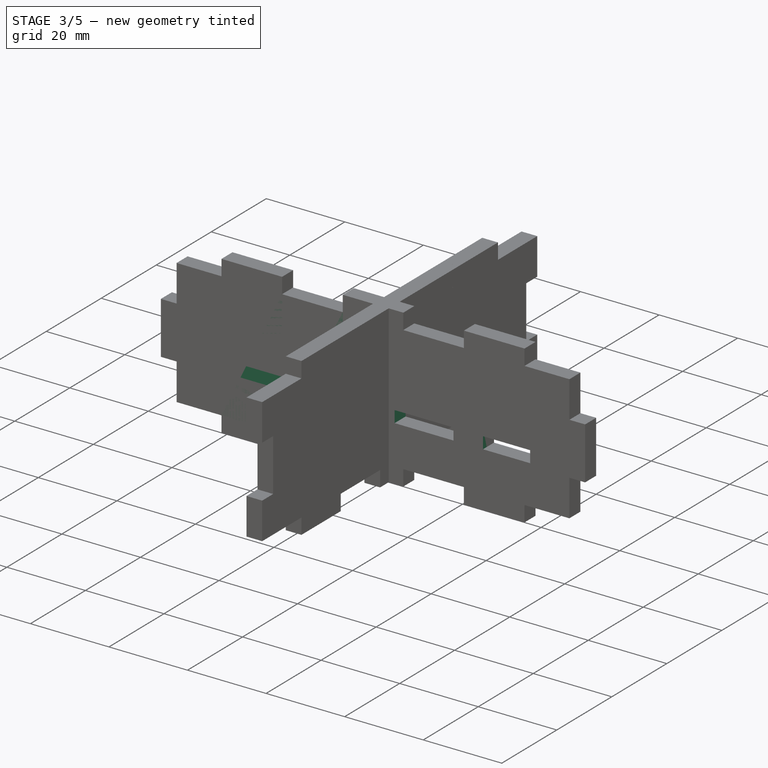
[diagram: stage 3 of 5 — iso view after this stage's code; geometry added in this stage tinted green]
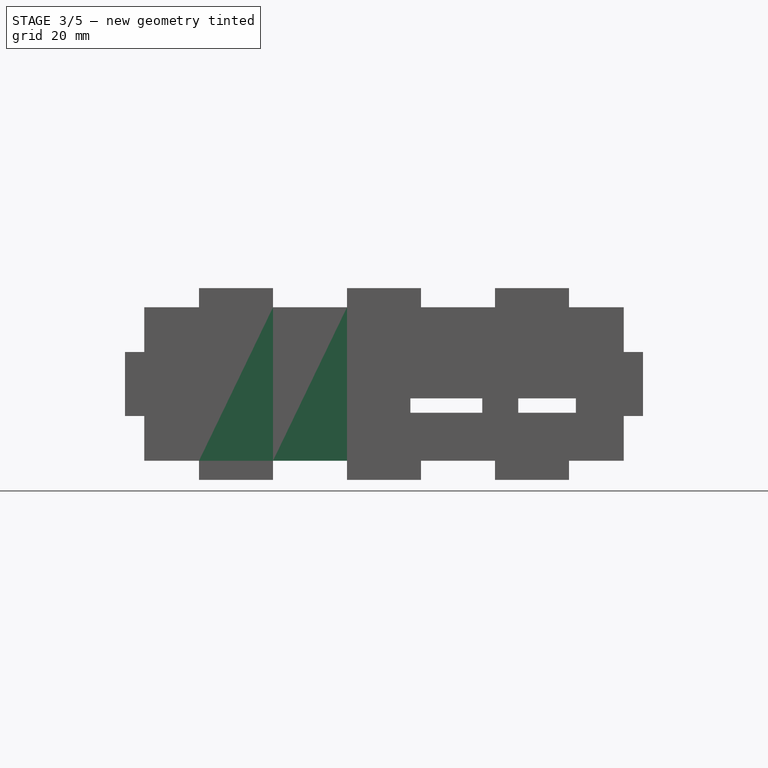
[diagram: stage 3 of 5 — front view after this stage's code; geometry added in this stage tinted green]
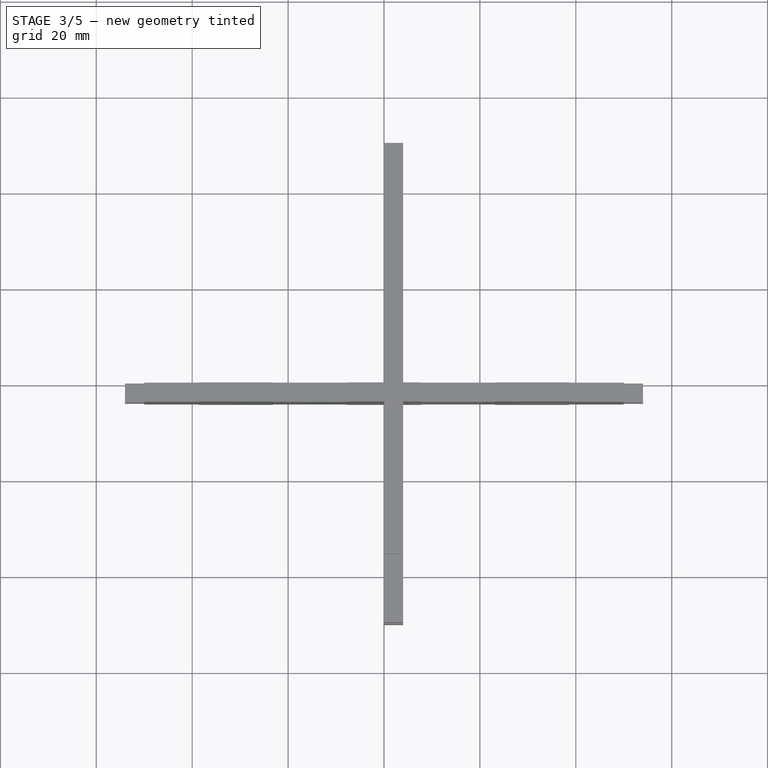
[diagram: stage 3 of 5 — top view after this stage's code; geometry added in this stage tinted green]
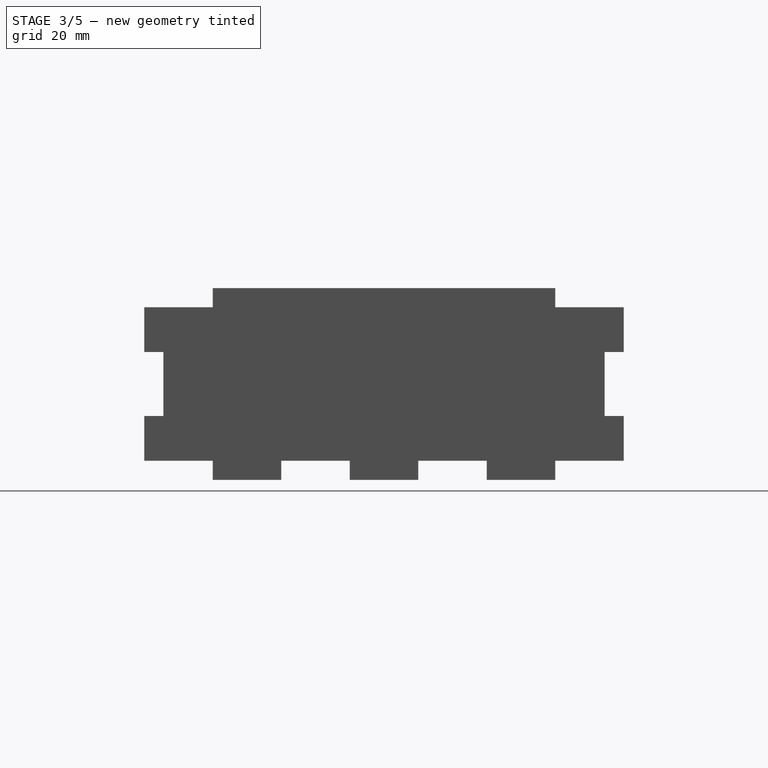
[diagram: stage 3 of 5 — right view after this stage's code; geometry added in this stage tinted green]
FEATURE [PartDesign::Body] Body  label="BackPlate"
  Group = -> [Sketch,Pad,Sketch002,Pocket,Sketch003,Pocket001]
  Origin = -> Origin
  Tip = -> Pocket001
FEATURE [Sketcher::SketchObject] Sketch004
  FullyConstrained = true
  MapMode = 5
  Placement = pos=(0,0,0) rot=(1,0,0;1.5708rad)
  Support = -> [XZ_Plane001]
  sketch-geometry (4):
    g0: LineSegment StartX=-54 StartY=40 StartZ=0 EndX=54 EndY=40 EndZ=0
    g1: LineSegment StartX=54 StartY=40 StartZ=0 EndX=54 EndY=0 EndZ=0
    g2: LineSegment StartX=54 StartY=0 StartZ=0 EndX=-54 EndY=0 EndZ=0
    g3: LineSegment StartX=-54 StartY=0 StartZ=0 EndX=-54 EndY=40 EndZ=0
  constraints (11):
    c: Coincident(g0,g1)
    c: Coincident(g1,g2)
    c: Coincident(g2,g3)
    c: Coincident(g3,g0)
    c: Horizontal(g2)
    c: Vertical(g1)
    c: Vertical(g3)
    c: DistanceX(g2,g2) = 108
    c: DistanceY(g1,g1) = 40
    c: Symmetric(g0,g0,g-2)
    c: PointOnObject(g-1,g2)
FEATURE [PartDesign::Pad] Pad001
  Direction = (0,-1,2e-16)
  Length = 4
  Length2 = 10
  Placement = pos=(0,0,0) rot=(1,0,0;1.5708rad)
  Profile = -> Sketch004
  ReferenceAxis = -> Sketch004 [N_Axis]
  Type = 0
FEATURE [Sketcher::SketchObject] Sketch005
  ExternalGeometry = -> [Pad001]
  FullyConstrained = true
  MapMode = 5
  Placement = pos=(0,-4,1.8e-15) rot=(1,0,0;1.5708rad)
  Support = -> [Pad001]
  sketch-geometry (38):
    g0: LineSegment StartX=-54 StartY=40 StartZ=0 EndX=-38.5714 EndY=40 EndZ=0
    g1: LineSegment StartX=-38.5714 StartY=40 StartZ=0 EndX=-38.5714 EndY=36 EndZ=0
    g2: LineSegment StartX=-38.5714 StartY=36 StartZ=0 EndX=-54 EndY=36 EndZ=0
    g3: LineSegment StartX=-54 StartY=36 StartZ=0 EndX=-54 EndY=40 EndZ=0
    g4: LineSegment StartX=54 StartY=40 StartZ=0 EndX=38.5714 EndY=40 EndZ=0
    g5: LineSegment StartX=38.5714 StartY=40 StartZ=0 EndX=38.5714 EndY=36 EndZ=0
    g6: LineSegment StartX=38.5714 StartY=36 StartZ=0 EndX=54 EndY=36 EndZ=0
    g7: LineSegment StartX=54 StartY=36 StartZ=0 EndX=54 EndY=40 EndZ=0
    g8: LineSegment StartX=23.1429 StartY=40 StartZ=0 EndX=7.71429 EndY=40 EndZ=0
    g9: LineSegment StartX=7.71429 StartY=40 StartZ=0 EndX=7.71429 EndY=36 EndZ=0
    g10: LineSegment StartX=7.71429 StartY=36 StartZ=0 EndX=23.1429 EndY=36 EndZ=0
    g11: LineSegment StartX=23.1429 StartY=36 StartZ=0 EndX=23.1429 EndY=40 EndZ=0
    g12: LineSegment StartX=-7.71429 StartY=40 StartZ=0 EndX=-23.1429 EndY=40 EndZ=0
    g13: LineSegment StartX=-23.1429 StartY=40 StartZ=0 EndX=-23.1429 EndY=36 EndZ=0
    g14: LineSegment StartX=-23.1429 StartY=36 StartZ=0 EndX=-7.71429 EndY=36 EndZ=0
    g15: LineSegment StartX=-7.71429 StartY=36 StartZ=0 EndX=-7.71429 EndY=40 EndZ=0
    g16: LineSegment StartX=-54 StartY=0 StartZ=0 EndX=-38.5714 EndY=0 EndZ=0
    g17: LineSegment StartX=-38.5714 StartY=0 StartZ=0 EndX=-38.5714 EndY=4 EndZ=0
    g18: LineSegment StartX=-38.5714 StartY=4 StartZ=0 EndX=-54 EndY=4 EndZ=0
    g19: LineSegment StartX=-54 StartY=4 StartZ=0 EndX=-54 EndY=0 EndZ=0
    g20: LineSegment StartX=-23.1429 StartY=0 StartZ=0 EndX=-7.71429 EndY=0 EndZ=0
    g21: LineSegment StartX=-7.71429 StartY=0 StartZ=0 EndX=-7.71429 EndY=4 EndZ=0
    g22: LineSegment StartX=-7.71429 StartY=4 StartZ=0 EndX=-23.1429 EndY=4 EndZ=0
    g23: LineSegment StartX=-23.1429 StartY=4 StartZ=0 EndX=-23.1429 EndY=0 EndZ=0
    g24: LineSegment StartX=7.71429 StartY=0 StartZ=0 EndX=23.1429 EndY=0 EndZ=0
    g25: LineSegment StartX=23.1429 StartY=0 StartZ=0 EndX=23.1429 EndY=4 EndZ=0
    g26: LineSegment StartX=23.1429 StartY=4 StartZ=0 EndX=7.71429 EndY=4 EndZ=0
    g27: LineSegment StartX=7.71429 StartY=4 StartZ=0 EndX=7.71429 EndY=0 EndZ=0
    g28: LineSegment StartX=38.5714 StartY=0 StartZ=0 EndX=54 EndY=0 EndZ=0
    g29: LineSegment StartX=54 StartY=0 StartZ=0 EndX=54 EndY=4 EndZ=0
    g30: LineSegment StartX=54 StartY=4 StartZ=0 EndX=38.5714 EndY=4 EndZ=0
    g31: LineSegment StartX=38.5714 StartY=4 StartZ=0 EndX=38.5714 EndY=0 EndZ=0
    g32: LineSegment StartX=-38.5714 StartY=40 StartZ=0 EndX=-23.1429 EndY=40 EndZ=0
    g33: LineSegment StartX=-7.71429 StartY=40 StartZ=0 EndX=7.71429 EndY=40 EndZ=0
    g34: LineSegment StartX=23.1429 StartY=40 StartZ=0 EndX=38.5714 EndY=40 EndZ=0
    g35: LineSegment StartX=23.1429 StartY=0 StartZ=0 EndX=38.5714 EndY=0 EndZ=0
    g36: LineSegment StartX=7.71429 StartY=0 StartZ=0 EndX=-7.71429 EndY=0 EndZ=0
    g37: LineSegment StartX=-23.1429 StartY=0 StartZ=0 EndX=-38.5714 EndY=0 EndZ=0
  constraints (105):
    c: Coincident(g0,g1)
    c: Coincident(g1,g2)
    c: Coincident(g2,g3)
    c: Coincident(g3,g0)
    c: Horizontal(g0)
    c: Horizontal(g2)
    c: Vertical(g1)
    c: Vertical(g3)
    c: Coincident(g0,g-4)
    c: Coincident(g4,g5)
    c: Coincident(g5,g6)
    c: Coincident(g6,g7)
    c: Coincident(g7,g4)
    c: Horizontal(g4)
    c: Horizontal(g6)
    c: Vertical(g5)
    c: Vertical(g7)
    c: Coincident(g4,g-6)
    c: Coincident(g8,g9)
    c: Coincident(g9,g10)
    c: Coincident(g10,g11)
    c: Coincident(g11,g8)
    c: Horizontal(g8)
    c: Horizontal(g10)
    c: Vertical(g9)
    c: Vertical(g11)
    c: PointOnObject(g8,g-3)
    c: Coincident(g12,g13)
    c: Coincident(g13,g14)
    c: Coincident(g14,g15)
    c: Coincident(g15,g12)
    c: Horizontal(g12)
    c: Horizontal(g14)
    c: Vertical(g13)
    c: Vertical(g15)
    c: PointOnObject(g12,g-3)
    c: Coincident(g16,g17)
    c: Coincident(g17,g18)
    c: Coincident(g18,g19)
    c: Coincident(g19,g16)
    c: Horizontal(g16)
    c: Horizontal(g18)
    c: Vertical(g17)
    c: Vertical(g19)
    c: Coincident(g16,g-5)
    c: Coincident(g20,g21)
    c: Coincident(g21,g22)
    c: Coincident(g22,g23)
    c: Coincident(g23,g20)
    c: Horizontal(g20)
    c: Horizontal(g22)
    c: Vertical(g21)
    c: Vertical(g23)
    c: PointOnObject(g20,g-5)
    c: Coincident(g24,g25)
    c: Coincident(g25,g26)
    c: Coincident(g26,g27)
    c: Coincident(g27,g24)
    c: Horizontal(g24)
    c: Horizontal(g26)
    c: Vertical(g25)
    c: Vertical(g27)
    c: PointOnObject(g24,g-5)
    c: Coincident(g28,g29)
    c: Coincident(g29,g30)
    c: Coincident(g30,g31)
    c: Coincident(g31,g28)
    c: Horizontal(g28)
    c: Horizontal(g30)
    c: Vertical(g29)
    c: Vertical(g31)
    c: PointOnObject(g28,g-5)
    c: PointOnObject(g29,g-6)
    c: Coincident(g32,g0)
    c: Coincident(g32,g12)
    c: Coincident(g33,g12)
    c: Coincident(g33,g8)
    c: Coincident(g34,g8)
    c: Coincident(g34,g4)
    c: Coincident(g35,g24)
    c: Coincident(g35,g28)
    c: Coincident(g36,g24)
    c: Coincident(g36,g20)
    c: Coincident(g37,g20)
    c: Coincident(g37,g16)
    c: Equal(g0,g32)
    c: Equal(g32,g12)
    c: Equal(g12,g33)
    c: Equal(g33,g8)
    c: Equal(g8,g4)
    c: Equal(g4,g34)
    c: Equal(g34,g28)
    c: Equal(g28,g35)
    c: Equal(g35,g24)
    c: Equal(g24,g36)
    c: Equal(g36,g20)
    c: Equal(g20,g37)
    c: Equal(g21,g1)
    c: Equal(g1,g17)
    c: Equal(g17,g15)
    c: Equal(g15,g11)
    c: Equal(g11,g25)
    c: Equal(g25,g29)
    c: Equal(g29,g7)
    c: DistanceY(g7,g7) = 4
FEATURE [PartDesign::Pocket] Pocket002
  BaseFeature = -> Pad001
  Direction = (0,1,-2e-16)
  Length = 5
  Length2 = 5
  Placement = pos=(0,0,0) rot=(1,0,0;1.5708rad)
  Profile = -> Sketch005
  ReferenceAxis = -> Sketch005 [N_Axis]
  Type = 2
FEATURE [Sketcher::SketchObject] Sketch006
  ExternalGeometry = -> [Pocket002]
  FullyConstrained = true
  MapMode = 5
  Placement = pos=(0,-4,1.8e-15) rot=(1,0,0;1.5708rad)
  Support = -> [Pocket002]
  sketch-geometry (18):
    g0: LineSegment StartX=50 StartY=40 StartZ=0 EndX=54 EndY=40 EndZ=0
    g1: LineSegment StartX=54 StartY=40 StartZ=0 EndX=54 EndY=26.6667 EndZ=0
    g2: LineSegment StartX=54 StartY=26.6667 StartZ=0 EndX=50 EndY=26.6667 EndZ=0
    g3: LineSegment StartX=50 StartY=26.6667 StartZ=0 EndX=50 EndY=40 EndZ=0
    g4: LineSegment StartX=50 StartY=13.3333 StartZ=0 EndX=54 EndY=13.3333 EndZ=0
    g5: LineSegment StartX=54 StartY=13.3333 StartZ=0 EndX=54 EndY=0 EndZ=0
    g6: LineSegment StartX=54 StartY=0 StartZ=0 EndX=50 EndY=0 EndZ=0
    g7: LineSegment StartX=50 StartY=0 StartZ=0 EndX=50 EndY=13.3333 EndZ=0
    g8: LineSegment StartX=-54 StartY=0 StartZ=0 EndX=-50 EndY=0 EndZ=0
    g9: LineSegment StartX=-50 StartY=0 StartZ=0 EndX=-50 EndY=13.3333 EndZ=0
    g10: LineSegment StartX=-50 StartY=13.3333 StartZ=0 EndX=-54 EndY=13.3333 EndZ=0
    g11: LineSegment StartX=-54 StartY=13.3333 StartZ=0 EndX=-54 EndY=0 EndZ=0
    g12: LineSegment StartX=-54 StartY=40 StartZ=0 EndX=-50 EndY=40 EndZ=0
    g13: LineSegment StartX=-50 StartY=40 StartZ=0 EndX=-50 EndY=26.6667 EndZ=0
    g14: LineSegment StartX=-50 StartY=26.6667 StartZ=0 EndX=-54 EndY=26.6667 EndZ=0
    g15: LineSegment StartX=-54 StartY=26.6667 StartZ=0 EndX=-54 EndY=40 EndZ=0
    g16: LineSegment StartX=-54 StartY=26.6667 StartZ=0 EndX=-54 EndY=13.3333 EndZ=0
    g17: LineSegment StartX=54 StartY=26.6667 StartZ=0 EndX=54 EndY=13.3333 EndZ=0
  constraints (50):
    c: Coincident(g0,g1)
    c: Coincident(g1,g2)
    c: Coincident(g2,g3)
    c: Coincident(g3,g0)
    c: Horizontal(g0)
    c: Horizontal(g2)
    c: Vertical(g1)
    c: Vertical(g3)
    c: Coincident(g4,g5)
    c: Coincident(g5,g6)
    c: Coincident(g6,g7)
    c: Coincident(g7,g4)
    c: Horizontal(g4)
    c: Horizontal(g6)
    c: Vertical(g5)
    c: Vertical(g7)
    c: PointOnObject(g5,g-1)
    c: Coincident(g8,g9)
    c: Coincident(g9,g10)
    c: Coincident(g10,g11)
    c: Coincident(g11,g8)
    c: Horizontal(g8)
    c: Horizontal(g10)
    c: Vertical(g9)
    c: Vertical(g11)
    c: PointOnObject(g8,g-1)
    c: Coincident(g12,g13)
    c: Coincident(g13,g14)
    c: Coincident(g14,g15)
    c: Coincident(g15,g12)
    c: Horizontal(g12)
    c: Horizontal(g14)
    c: Vertical(g13)
    c: Vertical(g15)
    c: Coincident(g16,g14)
    c: Coincident(g16,g10)
    c: Coincident(g17,g1)
    c: Coincident(g17,g4)
    c: Equal(g17,g1)
    c: Equal(g1,g5)
    c: Equal(g5,g15)
    c: Equal(g15,g16)
    c: Equal(g16,g11)
    c: Equal(g2,g4)
    c: Equal(g4,g14)
    c: Equal(g14,g10)
    c: Tangent(g17,g-4)
    c: Tangent(g-3,g16)
    c: DistanceX(g0,g0) = 4
    c: PointOnObject(g-5,g12)
FEATURE [PartDesign::Pocket] Pocket003
  BaseFeature = -> Pocket002
  Direction = (0,1,-2e-16)
  Length = 5
  Length2 = 5
  Placement = pos=(0,0,0) rot=(1,0,0;1.5708rad)
  Profile = -> Sketch006
  ReferenceAxis = -> Sketch006 [N_Axis]
  Type = 2
FEATURE [PartDesign::Body] Body005  label="FrontPlate"
  Group = -> [Sketch016,Pad005,Sketch017,Pocket010,Sketch026,Pocket017,Sketch027,Pocket018,Sketch028,Pocket019,Sketch029,Pocket020,Sketch030,Pocket021]
  Origin = -> Origin005
  Placement = pos=(0,0,36) rot=(0,0,1;0rad)
  Tip = -> Pocket021
FEATURE [Sketcher::SketchObject] Sketch031
  ExternalGeometry = -> [Pocket003]
  FullyConstrained = true
  MapMode = 5
  Placement = pos=(0,-4,1.8e-15) rot=(1,0,0;1.5708rad)
  Support = -> [Pocket003]
  sketch-geometry (8):
    g0: LineSegment StartX=28 StartY=19 StartZ=0 EndX=40 EndY=19 EndZ=0
    g1: LineSegment StartX=40 StartY=19 StartZ=0 EndX=40 EndY=4 EndZ=0
    g2: LineSegment StartX=40 StartY=4 StartZ=0 EndX=28 EndY=4 EndZ=0
    g3: LineSegment StartX=28 StartY=4 StartZ=0 EndX=28 EndY=19 EndZ=0
    g4: LineSegment StartX=5.5 StartY=26.5 StartZ=0 EndX=20.5 EndY=26.5 EndZ=0
    g5: LineSegment StartX=20.5 StartY=26.5 StartZ=0 EndX=20.5 EndY=11.5 EndZ=0
    g6: LineSegment StartX=20.5 StartY=11.5 StartZ=0 EndX=5.5 EndY=11.5 EndZ=0
    g7: LineSegment StartX=5.5 StartY=11.5 StartZ=0 EndX=5.5 EndY=26.5 EndZ=0
  constraints (24):
    c: Coincident(g0,g1)
    c: Coincident(g1,g2)
    c: Coincident(g2,g3)
    c: Coincident(g3,g0)
    c: Horizontal(g0)
    c: Horizontal(g2)
    c: Vertical(g1)
    c: Vertical(g3)
    c: Coincident(g4,g5)
    c: Coincident(g5,g6)
    c: Coincident(g6,g7)
    c: Coincident(g7,g4)
    c: Horizontal(g4)
    c: Horizontal(g6)
    c: Vertical(g5)
    c: Vertical(g7)
    c: DistanceX(g0,g0) = 12
    c: DistanceY(g1,g1) = 15
    c: DistanceX(g4,g4) = 15
    c: DistanceY(g5,g5) = 15
    c: DistanceX(g1,g-3) = 10
    c: PointOnObject(g-3,g2)
    c: DistanceX(g5,g-3) = 29.5
    c: DistanceY(g-3,g5) = 7.5
FEATURE [PartDesign::Pocket] Pocket022
  BaseFeature = -> Pocket003
  Direction = (0,1,-2e-16)
  Length = 5
  Length2 = 5
  Placement = pos=(0,0,0) rot=(1,0,0;1.5708rad)
  Profile = -> Sketch031
  ReferenceAxis = -> Sketch031 [N_Axis]
  Type = 2
FEATURE [PartDesign::Body] Body001  label="BottomPlate"
  Group = -> [Sketch004,Pad001,Sketch005,Pocket002,Sketch006,Pocket003,Sketch031,Pocket022]
  Origin = -> Origin001
  Placement = pos=(0,-46,0) rot=(0,0,1;0rad)
  Tip = -> Pocket022
FEATURE [Part::Part2DObjectPython] Shape2DView  label="BackPlate2D"  # Draft 2D object (typed FeaturePython)
  AutoUpdate = true
  Base = -> Body
  Clip = false
  FuseArch = false
  HiddenLines = false
  InPlace = true
  OnlySolids = false
  Projection = (1e-15,-1.13111e-10,1)
  ProjectionMode = 0
  SegmentLength = 0.05
  Tessellation = false
  VisibleOnly = false
FEATURE [Part::Part2DObjectPython] Shape2DView001  label="BottomPlate2D"  # Draft 2D object (typed FeaturePython)
  AutoUpdate = true
  Base = -> Pocket022
  Clip = false
  FaceNumbers = [3]
  FuseArch = false
  HiddenLines = false
  InPlace = true
  OnlySolids = false
  Projection = (-1.30903e-09,-1,-8.42938e-08)
  ProjectionMode = 0
  SegmentLength = 0.05
  Tessellation = false
  VisibleOnly = false
FEATURE [Part::Part2DObjectPython] Shape2DView002  label="LeftSide2D"  # Draft 2D object (typed FeaturePython)
  AutoUpdate = true
  Base = -> Body003
  Clip = false
  FuseArch = false
  HiddenLines = false
  InPlace = true
  OnlySolids = false
  Projection = (-1,2.98023e-08,2.98023e-08)
  ProjectionMode = 0
  SegmentLength = 0.05
  Tessellation = false
  VisibleOnly = false
FEATURE [Part::Part2DObjectPython] Shape2DView004  label="RightSide2D"  # Draft 2D object (typed FeaturePython)
  AutoUpdate = true
  Base = -> Body006
  Clip = false
  FuseArch = false
  HiddenLines = false
  InPlace = true
  OnlySolids = false
  Projection = (1,7.1e-15,1.19209e-07)
  ProjectionMode = 0
  SegmentLength = 0.05
  Tessellation = false
  VisibleOnly = false
FEATURE [Part::Part2DObjectPython] Shape2DView005  label="TopSide2D"  # Draft 2D object (typed FeaturePython)
  AutoUpdate = true
  Base = -> Body007
  Clip = false
  FuseArch = false
  HiddenLines = false
  InPlace = true
  OnlySolids = false
  Projection = (2.31808e-07,1,4.21468e-07)
  ProjectionMode = 0
  SegmentLength = 0.05
  Tessellation = false
  VisibleOnly = false
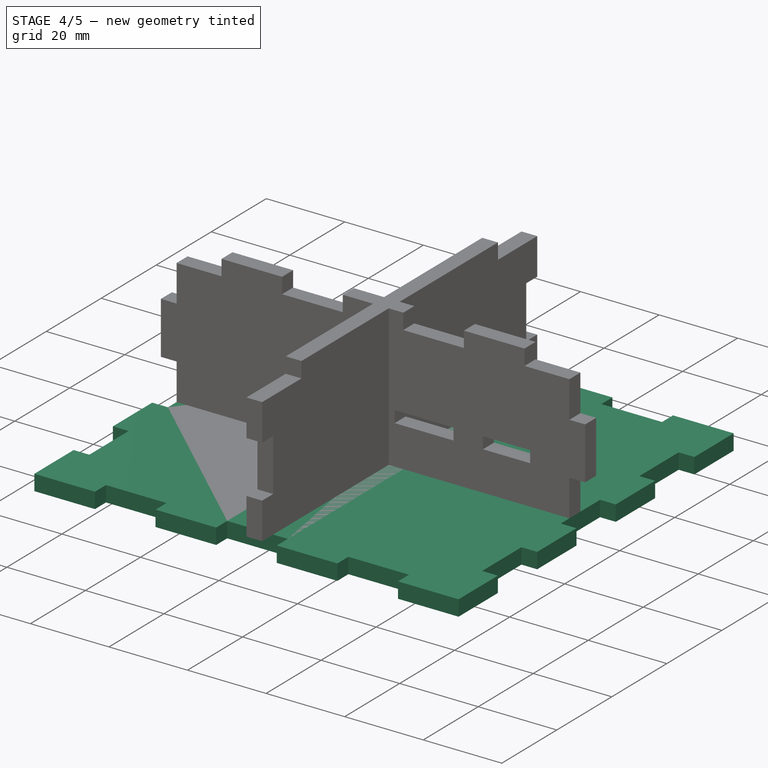
[diagram: stage 4 of 5 — iso view after this stage's code; geometry added in this stage tinted green]
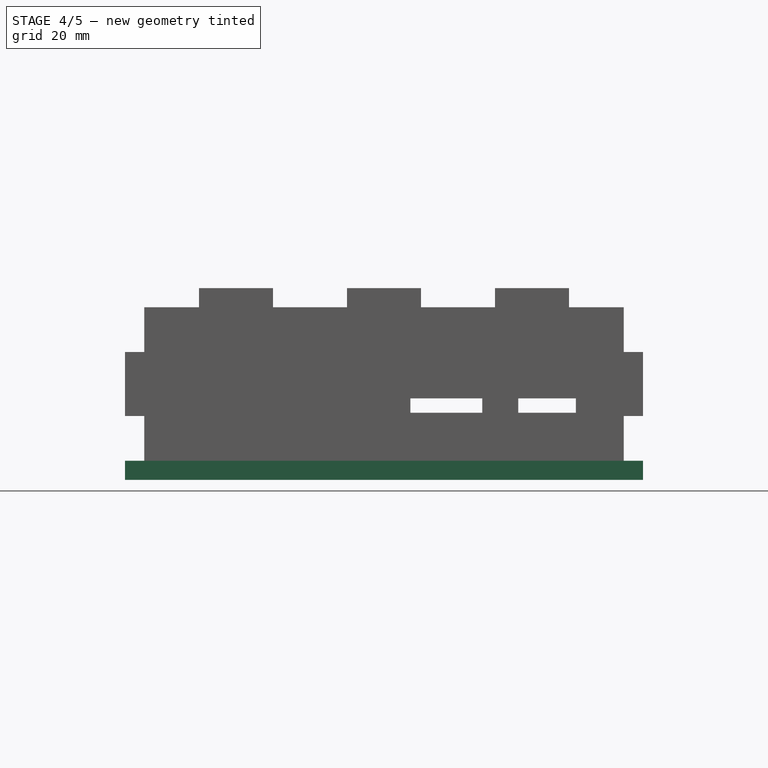
[diagram: stage 4 of 5 — front view after this stage's code; geometry added in this stage tinted green]
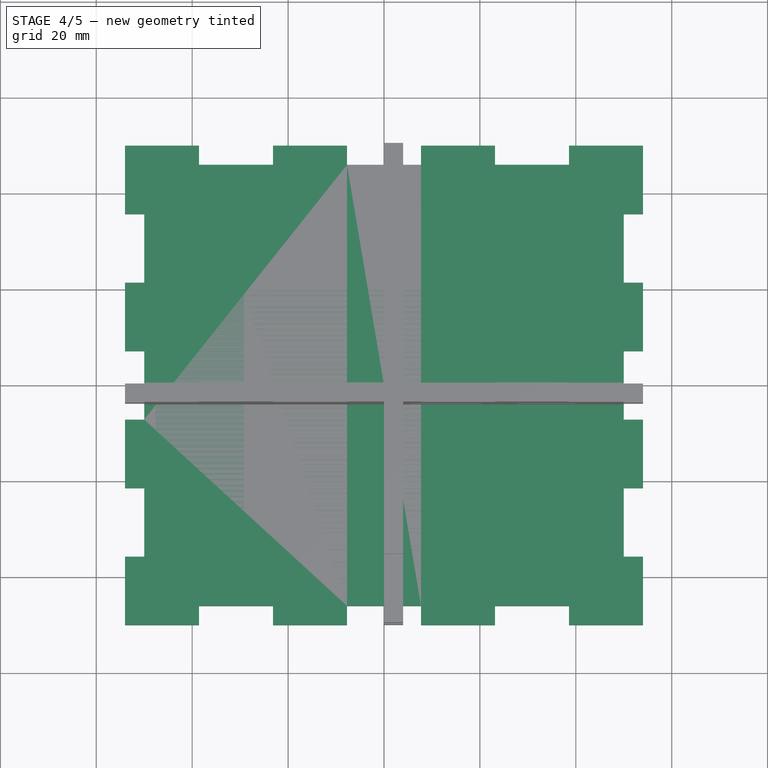
[diagram: stage 4 of 5 — top view after this stage's code; geometry added in this stage tinted green]
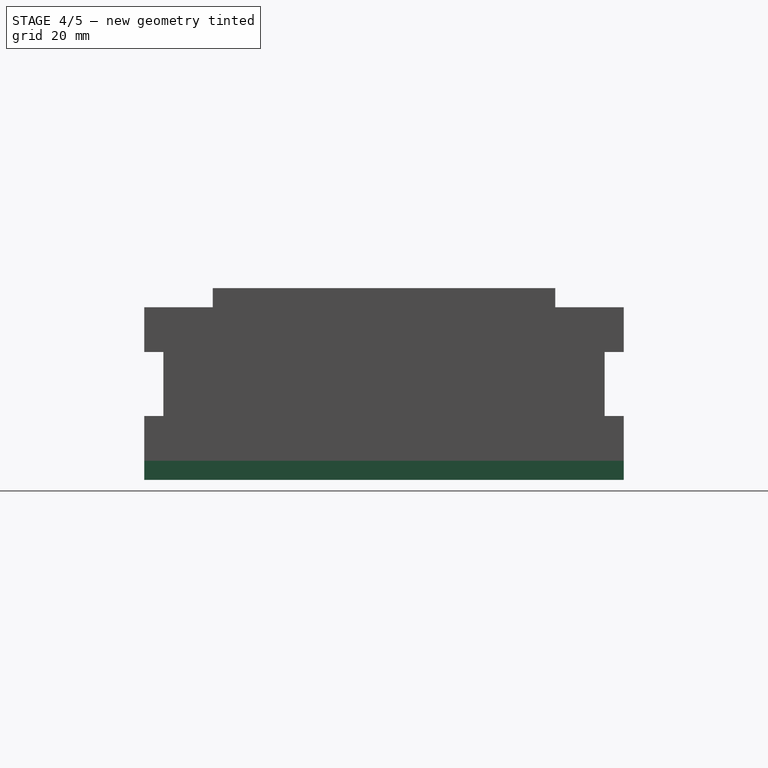
[diagram: stage 4 of 5 — right view after this stage's code; geometry added in this stage tinted green]
FEATURE [Sketcher::SketchObject] Sketch
  FullyConstrained = true
  MapMode = 5
  Support = -> [XY_Plane]
  sketch-geometry (4):
    g0: LineSegment StartX=-54 StartY=50 StartZ=0 EndX=54 EndY=50 EndZ=0
    g1: LineSegment StartX=54 StartY=50 StartZ=0 EndX=54 EndY=-50 EndZ=0
    g2: LineSegment StartX=54 StartY=-50 StartZ=0 EndX=-54 EndY=-50 EndZ=0
    g3: LineSegment StartX=-54 StartY=-50 StartZ=0 EndX=-54 EndY=50 EndZ=0
  constraints (10):
    c: Coincident(g0,g1)
    c: Coincident(g1,g2)
    c: Coincident(g2,g3)
    c: Coincident(g3,g0)
    c: Horizontal(g2)
    c: Vertical(g1)
    c: Symmetric(g0,g0,g-2)
    c: Symmetric(g0,g2,g-1)
    c: DistanceY(g1,g1) = 100
    c: DistanceX(g2,g2) = 108
FEATURE [PartDesign::Pad] Pad
  Direction = (0,0,1)
  Length = 4
  Length2 = 10
  Profile = -> Sketch
  ReferenceAxis = -> Sketch [N_Axis]
  Type = 0
FEATURE [Sketcher::SketchObject] Sketch002
  ExternalGeometry = -> [Pad]
  FullyConstrained = true
  MapMode = 5
  Placement = pos=(0,0,4) rot=(0,0,1;0rad)
  Support = -> [Pad]
  sketch-geometry (64):
    g0: LineSegment StartX=-38.5714 StartY=50 StartZ=0 EndX=-23.1429 EndY=50 EndZ=0
    g1: LineSegment StartX=-23.1429 StartY=50 StartZ=0 EndX=-23.1429 EndY=46 EndZ=0
    g2: LineSegment StartX=-23.1429 StartY=46 StartZ=0 EndX=-38.5714 EndY=46 EndZ=0
    g3: LineSegment StartX=-38.5714 StartY=46 StartZ=0 EndX=-38.5714 EndY=50 EndZ=0
    g4: LineSegment StartX=-7.71429 StartY=50 StartZ=0 EndX=7.71429 EndY=50 EndZ=0
    g5: LineSegment StartX=7.71429 StartY=50 StartZ=0 EndX=7.71429 EndY=46 EndZ=0
    g6: LineSegment StartX=7.71429 StartY=46 StartZ=0 EndX=-7.71429 EndY=46 EndZ=0
    g7: LineSegment StartX=-7.71429 StartY=46 StartZ=0 EndX=-7.71429 EndY=50 EndZ=0
    g8: LineSegment StartX=23.1429 StartY=50 StartZ=0 EndX=38.5714 EndY=50 EndZ=0
    g9: LineSegment StartX=38.5714 StartY=50 StartZ=0 EndX=38.5714 EndY=46 EndZ=0
    g10: LineSegment StartX=38.5714 StartY=46 StartZ=0 EndX=23.1429 EndY=46 EndZ=0
    g11: LineSegment StartX=23.1429 StartY=46 StartZ=0 EndX=23.1429 EndY=50 EndZ=0
    g12: LineSegment StartX=-54 StartY=50 StartZ=0 EndX=-38.5714 EndY=50 EndZ=0
    g13: LineSegment StartX=-23.1429 StartY=50 StartZ=0 EndX=-7.71429 EndY=50 EndZ=0
    g14: LineSegment StartX=7.71429 StartY=50 StartZ=0 EndX=23.1429 EndY=50 EndZ=0
    g15: LineSegment StartX=38.5714 StartY=50 StartZ=0 EndX=54 EndY=50 EndZ=0
    g16: LineSegment StartX=-54 StartY=35.7143 StartZ=0 EndX=-50 EndY=35.7143 EndZ=0
    g17: LineSegment StartX=-50 StartY=35.7143 StartZ=0 EndX=-50 EndY=21.4286 EndZ=0
    g18: LineSegment StartX=-50 StartY=21.4286 StartZ=0 EndX=-54 EndY=21.4286 EndZ=0
    g19: LineSegment StartX=-54 StartY=21.4286 StartZ=0 EndX=-54 EndY=35.7143 EndZ=0
    g20: LineSegment StartX=-54 StartY=7.14286 StartZ=0 EndX=-50 EndY=7.14286 EndZ=0
    g21: LineSegment StartX=-50 StartY=7.14286 StartZ=0 EndX=-50 EndY=-7.14286 EndZ=0
    g22: LineSegment StartX=-50 StartY=-7.14286 StartZ=0 EndX=-54 EndY=-7.14286 EndZ=0
    g23: LineSegment StartX=-54 StartY=-7.14286 StartZ=0 EndX=-54 EndY=7.14286 EndZ=0
    g24: LineSegment StartX=-54 StartY=-21.4286 StartZ=0 EndX=-50 EndY=-21.4286 EndZ=0
    g25: LineSegment StartX=-50 StartY=-21.4286 StartZ=0 EndX=-50 EndY=-35.7143 EndZ=0
    g26: LineSegment StartX=-50 StartY=-35.7143 StartZ=0 EndX=-54 EndY=-35.7143 EndZ=0
    g27: LineSegment StartX=-54 StartY=-35.7143 StartZ=0 EndX=-54 EndY=-21.4286 EndZ=0
    g28: LineSegment StartX=54 StartY=35.7143 StartZ=0 EndX=50 EndY=35.7143 EndZ=0
    g29: LineSegment StartX=50 StartY=35.7143 StartZ=0 EndX=50 EndY=21.4286 EndZ=0
    g30: LineSegment StartX=50 StartY=21.4286 StartZ=0 EndX=54 EndY=21.4286 EndZ=0
    g31: LineSegment StartX=54 StartY=21.4286 StartZ=0 EndX=54 EndY=35.7143 EndZ=0
    g32: LineSegment StartX=54 StartY=7.14286 StartZ=0 EndX=50 EndY=7.14286 EndZ=0
    g33: LineSegment StartX=50 StartY=7.14286 StartZ=0 EndX=50 EndY=-7.14286 EndZ=0
    g34: LineSegment StartX=50 StartY=-7.14286 StartZ=0 EndX=54 EndY=-7.14286 EndZ=0
    g35: LineSegment StartX=54 StartY=-7.14286 StartZ=0 EndX=54 EndY=7.14286 EndZ=0
    g36: LineSegment StartX=54 StartY=-21.4286 StartZ=0 EndX=50 EndY=-21.4286 EndZ=0
    g37: LineSegment StartX=50 StartY=-21.4286 StartZ=0 EndX=50 EndY=-35.7143 EndZ=0
    g38: LineSegment StartX=50 StartY=-35.7143 StartZ=0 EndX=54 EndY=-35.7143 EndZ=0
    g39: LineSegment StartX=54 StartY=-35.7143 StartZ=0 EndX=54 EndY=-21.4286 EndZ=0
    g40: LineSegment StartX=38.5714 StartY=-50 StartZ=0 EndX=23.1429 EndY=-50 EndZ=0
    g41: LineSegment StartX=23.1429 StartY=-50 StartZ=0 EndX=23.1429 EndY=-46 EndZ=0
    g42: LineSegment StartX=23.1429 StartY=-46 StartZ=0 EndX=38.5714 EndY=-46 EndZ=0
    g43: LineSegment StartX=38.5714 StartY=-46 StartZ=0 EndX=38.5714 EndY=-50 EndZ=0
    g44: LineSegment StartX=7.71429 StartY=-50 StartZ=0 EndX=-7.71429 EndY=-50 EndZ=0
    g45: LineSegment StartX=-7.71429 StartY=-50 StartZ=0 EndX=-7.71429 EndY=-46 EndZ=0
    g46: LineSegment StartX=-7.71429 StartY=-46 StartZ=0 EndX=7.71429 EndY=-46 EndZ=0
    g47: LineSegment StartX=7.71429 StartY=-46 StartZ=0 EndX=7.71429 EndY=-50 EndZ=0
    g48: LineSegment StartX=-23.1429 StartY=-50 StartZ=0 EndX=-38.5714 EndY=-50 EndZ=0
    g49: LineSegment StartX=-38.5714 StartY=-50 StartZ=0 EndX=-38.5714 EndY=-46 EndZ=0
    g50: LineSegment StartX=-38.5714 StartY=-46 StartZ=0 EndX=-23.1429 EndY=-46 EndZ=0
    g51: LineSegment StartX=-23.1429 StartY=-46 StartZ=0 EndX=-23.1429 EndY=-50 EndZ=0
    g52: LineSegment StartX=-54 StartY=50 StartZ=0 EndX=-54 EndY=35.7143 EndZ=0
    g53: LineSegment StartX=-54 StartY=21.4286 StartZ=0 EndX=-54 EndY=7.14286 EndZ=0
    g54: LineSegment StartX=-54 StartY=-7.14286 StartZ=0 EndX=-54 EndY=-21.4286 EndZ=0
    g55: LineSegment StartX=-54 StartY=-35.7143 StartZ=0 EndX=-54 EndY=-50 EndZ=0
    g56: LineSegment StartX=-54 StartY=-50 StartZ=0 EndX=-38.5714 EndY=-50 EndZ=0
    g57: LineSegment StartX=-23.1429 StartY=-50 StartZ=0 EndX=-7.71429 EndY=-50 EndZ=0
    g58: LineSegment StartX=7.71429 StartY=-50 StartZ=0 EndX=23.1429 EndY=-50 EndZ=0
    g59: LineSegment StartX=38.5714 StartY=-50 StartZ=0 EndX=54 EndY=-50 EndZ=0
    g60: LineSegment StartX=54 StartY=-50 StartZ=0 EndX=54 EndY=-35.7143 EndZ=0
    g61: LineSegment StartX=54 StartY=-21.4286 StartZ=0 EndX=54 EndY=-7.14286 EndZ=0
    g62: LineSegment StartX=54 StartY=7.14286 StartZ=0 EndX=54 EndY=21.4286 EndZ=0
    g63: LineSegment StartX=54 StartY=35.7143 StartZ=0 EndX=54 EndY=50 EndZ=0
  constraints (176):
    c: Coincident(g0,g1)
    c: Coincident(g1,g2)
    c: Coincident(g2,g3)
    c: Coincident(g3,g0)
    c: Horizontal(g0)
    c: Horizontal(g2)
    c: Vertical(g1)
    c: Vertical(g3)
    c: PointOnObject(g0,g-3)
    c: Coincident(g4,g5)
    c: Coincident(g5,g6)
    c: Coincident(g6,g7)
    c: Coincident(g7,g4)
    c: Horizontal(g4)
    c: Horizontal(g6)
    c: Vertical(g5)
    c: Vertical(g7)
    c: PointOnObject(g4,g-3)
    c: Coincident(g8,g9)
    c: Coincident(g9,g10)
    c: Coincident(g10,g11)
    c: Coincident(g11,g8)
    c: Horizontal(g8)
    c: Horizontal(g10)
    c: Vertical(g9)
    c: Vertical(g11)
    c: PointOnObject(g8,g-3)
    c: Equal(g3,g7)
    c: Equal(g7,g11)
    c: Coincident(g12,g-4)
    c: Coincident(g12,g0)
    c: Coincident(g13,g0)
    c: Coincident(g13,g4)
    c: Coincident(g14,g4)
    c: Coincident(g14,g8)
    c: Coincident(g15,g8)
    c: Coincident(g15,g-6)
    c: Equal(g12,g0)
    c: Equal(g0,g13)
    c: Equal(g13,g4)
    c: Equal(g4,g14)
    c: Equal(g14,g8)
    c: Equal(g8,g15)
    c: DistanceY(g9,g9) = 4
    c: Coincident(g16,g17)
    c: Coincident(g17,g18)
    c: Coincident(g18,g19)
    c: Coincident(g19,g16)
    c: Horizontal(g16)
    c: Horizontal(g18)
    c: Vertical(g17)
    c: Vertical(g19)
    c: PointOnObject(g16,g-4)
    c: Coincident(g20,g21)
    c: Coincident(g21,g22)
    c: Coincident(g22,g23)
    c: Coincident(g23,g20)
    c: Horizontal(g20)
    c: Horizontal(g22)
    c: Vertical(g21)
    c: Vertical(g23)
    c: PointOnObject(g20,g-4)
    c: Coincident(g24,g25)
    c: Coincident(g25,g26)
    c: Coincident(g26,g27)
    c: Coincident(g27,g24)
    c: Horizontal(g24)
    c: Horizontal(g26)
    c: Vertical(g25)
    c: Vertical(g27)
    c: PointOnObject(g24,g-4)
    c: Coincident(g28,g29)
    c: Coincident(g29,g30)
    c: Coincident(g30,g31)
    c: Coincident(g31,g28)
    c: Horizontal(g28)
    c: Horizontal(g30)
    c: Vertical(g29)
    c: Vertical(g31)
    c: PointOnObject(g28,g-6)
    c: Coincident(g32,g33)
    c: Coincident(g33,g34)
    c: Coincident(g34,g35)
    c: Coincident(g35,g32)
    c: Horizontal(g32)
    c: Horizontal(g34)
    c: Vertical(g33)
    c: Vertical(g35)
    c: PointOnObject(g32,g-6)
    c: Coincident(g36,g37)
    c: Coincident(g37,g38)
    c: Coincident(g38,g39)
    c: Coincident(g39,g36)
    c: Horizontal(g36)
    c: Horizontal(g38)
    c: Vertical(g37)
    c: Vertical(g39)
    c: PointOnObject(g36,g-6)
    c: Coincident(g40,g41)
    c: Coincident(g41,g42)
    c: Coincident(g42,g43)
    c: Coincident(g43,g40)
    c: Horizontal(g40)
    c: Horizontal(g42)
    c: Vertical(g41)
    c: Vertical(g43)
    c: PointOnObject(g40,g-5)
    c: Coincident(g44,g45)
    c: Coincident(g45,g46)
    c: Coincident(g46,g47)
    c: Coincident(g47,g44)
    c: Horizontal(g44)
    c: Horizontal(g46)
    c: Vertical(g45)
    c: Vertical(g47)
    c: PointOnObject(g44,g-5)
    c: Coincident(g48,g49)
    c: Coincident(g49,g50)
    c: Coincident(g50,g51)
    c: Coincident(g51,g48)
    c: Horizontal(g48)
    c: Horizontal(g50)
    c: Vertical(g49)
    c: Vertical(g51)
    c: PointOnObject(g48,g-5)
    c: Equal(g24,g20)
    c: Equal(g20,g16)
    c: Equal(g16,g49)
    c: Equal(g49,g45)
    c: Equal(g45,g41)
    c: Equal(g41,g38)
    c: Equal(g38,g34)
    c: Equal(g34,g30)
    c: Equal(g30,g9)
    c: Coincident(g52,g12)
    c: Coincident(g52,g16)
    c: Coincident(g53,g18)
    c: Coincident(g53,g20)
    c: Coincident(g54,g22)
    c: Coincident(g54,g24)
    c: Coincident(g55,g26)
    c: Coincident(g55,g-5)
    c: Coincident(g56,g55)
    c: Coincident(g56,g48)
    c: Coincident(g57,g48)
    c: Coincident(g57,g44)
    c: Coincident(g58,g44)
    c: Coincident(g58,g40)
    c: Coincident(g59,g40)
    c: Coincident(g59,g-6)
    c: Coincident(g60,g59)
    c: Coincident(g60,g38)
    c: Coincident(g61,g36)
    c: Coincident(g61,g34)
    c: Coincident(g62,g32)
    c: Coincident(g62,g30)
    c: Coincident(g63,g28)
    c: Coincident(g63,g15)
    c: Equal(g58,g40)
    c: Equal(g40,g59)
    c: Equal(g59,g44)
    c: Equal(g44,g57)
    c: Equal(g57,g48)
    c: Equal(g48,g56)
    c: Equal(g60,g39)
    c: Equal(g39,g61)
    c: Equal(g61,g35)
    c: Equal(g35,g62)
    c: Equal(g62,g31)
    c: Equal(g31,g63)
    c: Equal(g55,g27)
    c: Equal(g27,g54)
    c: Equal(g54,g23)
    c: Equal(g23,g53)
    c: Equal(g53,g19)
    c: Equal(g19,g52)
FEATURE [PartDesign::Pocket] Pocket
  BaseFeature = -> Pad
  Direction = (0,0,-1)
  Length = 5
  Length2 = 5
  Profile = -> Sketch002
  ReferenceAxis = -> Sketch002 [N_Axis]
  Type = 2
FEATURE [Sketcher::SketchObject] Sketch003
  ExternalGeometry = -> [Pocket]
  FullyConstrained = true
  MapMode = 5
  Placement = pos=(0,0,4) rot=(0,0,1;0rad)
  Support = -> [Pocket]
  sketch-geometry (16):
    g0: Circle CenterX=-46 CenterY=-42 CenterZ=0 NormalX=0 NormalY=0 NormalZ=1 AngleXU=0 Radius=1.5
    g1: Circle CenterX=-46 CenterY=14 CenterZ=0 NormalX=0 NormalY=0 NormalZ=1 AngleXU=0 Radius=1.5
    g2: Circle CenterX=46 CenterY=14 CenterZ=0 NormalX=0 NormalY=0 NormalZ=1 AngleXU=0 Radius=1.5
    g3: Circle CenterX=46 CenterY=-42 CenterZ=0 NormalX=0 NormalY=0 NormalZ=1 AngleXU=0 Radius=1.5
    g4: LineSegment StartX=-50 StartY=29 StartZ=0 EndX=50 EndY=29 EndZ=0
    g5: LineSegment StartX=50 StartY=29 StartZ=0 EndX=50 EndY=-46 EndZ=0
    g6: LineSegment StartX=50 StartY=-46 StartZ=0 EndX=-50 EndY=-46 EndZ=0
    g7: LineSegment StartX=-50 StartY=-46 StartZ=0 EndX=-50 EndY=29 EndZ=0
    g8: LineSegment StartX=-45.5 StartY=24 StartZ=0 EndX=-29.5 EndY=24 EndZ=0
    g9: LineSegment StartX=-29.5 StartY=24 StartZ=0 EndX=-29.5 EndY=20 EndZ=0
    g10: LineSegment StartX=-29.5 StartY=20 StartZ=0 EndX=-45.5 EndY=20 EndZ=0
    g11: LineSegment StartX=-45.5 StartY=20 StartZ=0 EndX=-45.5 EndY=24 EndZ=0
    g12: LineSegment StartX=29.5 StartY=24 StartZ=0 EndX=45.5 EndY=24 EndZ=0
    g13: LineSegment StartX=45.5 StartY=24 StartZ=0 EndX=45.5 EndY=20 EndZ=0
    g14: LineSegment StartX=45.5 StartY=20 StartZ=0 EndX=29.5 EndY=20 EndZ=0
    g15: LineSegment StartX=29.5 StartY=20 StartZ=0 EndX=29.5 EndY=24 EndZ=0
  constraints (44):
    c: Equal(g3,g2)
    c: Equal(g2,g1)
    c: Equal(g1,g0)
    c: Diameter(g2) = 3
    c: Coincident(g4,g5)
    c: Coincident(g5,g6)
    c: Coincident(g6,g7)
    c: Coincident(g7,g4)
    c: Horizontal(g6)
    c: Vertical(g5)
    c: Vertical(g7)
    c: DistanceY(g5,g5) = 75
    c: DistanceX(g6,g6) = 100
    c: Symmetric(g4,g4,g-2)
    c: Symmetric(g0,g3,g-2)
    c: Symmetric(g2,g1,g-2)
    c: DistanceX(g4,g1) = 4
    c: DistanceX(g6,g0) = 4
    c: DistanceY(g6,g0) = 4
    c: DistanceY(g1,g4) = 15
    c: PointOnObject(g-3,g6)
    c: Coincident(g8,g9)
    c: Coincident(g9,g10)
    c: Coincident(g10,g11)
    c: Coincident(g11,g8)
    c: Horizontal(g8)
    c: Horizontal(g10)
    c: Vertical(g9)
    c: Vertical(g11)
    c: Coincident(g12,g13)
    c: Coincident(g13,g14)
    c: Coincident(g14,g15)
    c: Coincident(g15,g12)
    c: Horizontal(g12)
    c: Horizontal(g14)
    c: Vertical(g13)
    c: Vertical(g15)
    c: Equal(g15,g9)
    c: Equal(g12,g8)
    c: Symmetric(g12,g8,g-2)
    c: DistanceY(g11,g11) = 4
    c: DistanceX(g8,g12) = 59
    c: DistanceX(g12,g4) = 4.5
    c: DistanceY(g12,g4) = 5
FEATURE [PartDesign::Pocket] Pocket001
  BaseFeature = -> Pocket
  Direction = (0,0,-1)
  Length = 5
  Length2 = 5
  Profile = -> Sketch003
  ReferenceAxis = -> Sketch003 [N_Axis]
  Type = 2
FEATURE [PartDesign::Body] Body003  label="LeftSide"
  Group = -> [Sketch010,Pad003,Sketch011,Pocket006,Sketch012,Pocket007]
  Origin = -> Origin003
  Placement = pos=(-54,0,0) rot=(0,0,1;0rad)
  Tip = -> Pocket007
FEATURE [Sketcher::SketchObject] Sketch016
  FullyConstrained = true
  MapMode = 5
  Support = -> [XY_Plane005]
  sketch-geometry (4):
    g0: LineSegment StartX=-54 StartY=50 StartZ=0 EndX=54 EndY=50 EndZ=0
    g1: LineSegment StartX=54 StartY=50 StartZ=0 EndX=54 EndY=-50 EndZ=0
    g2: LineSegment StartX=54 StartY=-50 StartZ=0 EndX=-54 EndY=-50 EndZ=0
    g3: LineSegment StartX=-54 StartY=-50 StartZ=0 EndX=-54 EndY=50 EndZ=0
  constraints (10):
    c: Coincident(g0,g1)
    c: Coincident(g1,g2)
    c: Coincident(g2,g3)
    c: Coincident(g3,g0)
    c: Horizontal(g2)
    c: Vertical(g1)
    c: Symmetric(g0,g0,g-2)
    c: Symmetric(g0,g2,g-1)
    c: DistanceY(g1,g1) = 100
    c: DistanceX(g2,g2) = 108
FEATURE [PartDesign::Pad] Pad005
  Direction = (0,0,1)
  Length = 4
  Length2 = 10
  Profile = -> Sketch016
  ReferenceAxis = -> Sketch016 [N_Axis]
  Type = 0
FEATURE [Sketcher::SketchObject] Sketch017
  ExternalGeometry = -> [Pad005]
  FullyConstrained = true
  MapMode = 5
  Placement = pos=(0,0,4) rot=(0,0,1;0rad)
  Support = -> [Pad005]
  sketch-geometry (62):
    g0: LineSegment StartX=-38.5714 StartY=50 StartZ=0 EndX=-23.1429 EndY=50 EndZ=0
    g1: LineSegment StartX=-23.1429 StartY=50 StartZ=0 EndX=-23.1429 EndY=46 EndZ=0
    g2: LineSegment StartX=-23.1429 StartY=46 StartZ=0 EndX=-38.5714 EndY=46 EndZ=0
    g3: LineSegment StartX=-38.5714 StartY=46 StartZ=0 EndX=-38.5714 EndY=50 EndZ=0
    g4: LineSegment StartX=-7.71429 StartY=50 StartZ=0 EndX=7.71429 EndY=50 EndZ=0
    g5: LineSegment StartX=7.71429 StartY=50 StartZ=0 EndX=7.71429 EndY=46 EndZ=0
    g6: LineSegment StartX=7.71429 StartY=46 StartZ=0 EndX=-7.71429 EndY=46 EndZ=0
    g7: LineSegment StartX=-7.71429 StartY=46 StartZ=0 EndX=-7.71429 EndY=50 EndZ=0
    g8: LineSegment StartX=23.1429 StartY=50 StartZ=0 EndX=38.5714 EndY=50 EndZ=0
    g9: LineSegment StartX=38.5714 StartY=50 StartZ=0 EndX=38.5714 EndY=46 EndZ=0
    g10: LineSegment StartX=38.5714 StartY=46 StartZ=0 EndX=23.1429 EndY=46 EndZ=0
    g11: LineSegment StartX=23.1429 StartY=46 StartZ=0 EndX=23.1429 EndY=50 EndZ=0
    g12: LineSegment StartX=-54 StartY=50 StartZ=0 EndX=-38.5714 EndY=50 EndZ=0
    g13: LineSegment StartX=-23.1429 StartY=50 StartZ=0 EndX=-7.71429 EndY=50 EndZ=0
    g14: LineSegment StartX=7.71429 StartY=50 StartZ=0 EndX=23.1429 EndY=50 EndZ=0
    g15: LineSegment StartX=38.5714 StartY=50 StartZ=0 EndX=54 EndY=50 EndZ=0
    g16: LineSegment StartX=-54 StartY=35.7143 StartZ=0 EndX=-50 EndY=35.7143 EndZ=0
    g17: LineSegment StartX=-50 StartY=35.7143 StartZ=0 EndX=-50 EndY=21.4286 EndZ=0
    g18: LineSegment StartX=-54 StartY=21.4286 StartZ=0 EndX=-54 EndY=35.7143 EndZ=0
    g19: LineSegment StartX=-50 StartY=7.14286 StartZ=0 EndX=-50 EndY=-7.14286 EndZ=0
    g20: LineSegment StartX=-54 StartY=-7.14286 StartZ=0 EndX=-54 EndY=7.14286 EndZ=0
    g21: LineSegment StartX=-50 StartY=-21.4286 StartZ=0 EndX=-50 EndY=-35.7143 EndZ=0
    g22: LineSegment StartX=-50 StartY=-35.7143 StartZ=0 EndX=-54 EndY=-35.7143 EndZ=0
    g23: LineSegment StartX=-54 StartY=-35.7143 StartZ=0 EndX=-54 EndY=-21.4286 EndZ=0
    g24: LineSegment StartX=54 StartY=35.7143 StartZ=0 EndX=50 EndY=35.7143 EndZ=0
    g25: LineSegment StartX=50 StartY=35.7143 StartZ=0 EndX=50 EndY=21.4286 EndZ=0
    g26: LineSegment StartX=50 StartY=21.4286 StartZ=0 EndX=54 EndY=21.4286 EndZ=0
    g27: LineSegment StartX=54 StartY=21.4286 StartZ=0 EndX=54 EndY=35.7143 EndZ=0
    g28: LineSegment StartX=54 StartY=7.14286 StartZ=0 EndX=50 EndY=7.14286 EndZ=0
    g29: LineSegment StartX=50 StartY=7.14286 StartZ=0 EndX=50 EndY=-7.14286 EndZ=0
    g30: LineSegment StartX=50 StartY=-7.14286 StartZ=0 EndX=54 EndY=-7.14286 EndZ=0
    g31: LineSegment StartX=54 StartY=-7.14286 StartZ=0 EndX=54 EndY=7.14286 EndZ=0
    g32: LineSegment StartX=54 StartY=-21.4286 StartZ=0 EndX=50 EndY=-21.4286 EndZ=0
    g33: LineSegment StartX=50 StartY=-21.4286 StartZ=0 EndX=50 EndY=-35.7143 EndZ=0
    g34: LineSegment StartX=50 StartY=-35.7143 StartZ=0 EndX=54 EndY=-35.7143 EndZ=0
    g35: LineSegment StartX=54 StartY=-35.7143 StartZ=0 EndX=54 EndY=-21.4286 EndZ=0
    g36: LineSegment StartX=38.5714 StartY=-50 StartZ=0 EndX=23.1429 EndY=-50 EndZ=0
    g37: LineSegment StartX=23.1429 StartY=-50 StartZ=0 EndX=23.1429 EndY=-46 EndZ=0
    g38: LineSegment StartX=23.1429 StartY=-46 StartZ=0 EndX=38.5714 EndY=-46 EndZ=0
    g39: LineSegment StartX=38.5714 StartY=-46 StartZ=0 EndX=38.5714 EndY=-50 EndZ=0
    g40: LineSegment StartX=7.71429 StartY=-50 StartZ=0 EndX=-7.71429 EndY=-50 EndZ=0
    g41: LineSegment StartX=-7.71429 StartY=-50 StartZ=0 EndX=-7.71429 EndY=-46 EndZ=0
    g42: LineSegment StartX=-7.71429 StartY=-46 StartZ=0 EndX=7.71429 EndY=-46 EndZ=0
    g43: LineSegment StartX=7.71429 StartY=-46 StartZ=0 EndX=7.71429 EndY=-50 EndZ=0
    g44: LineSegment StartX=-23.1429 StartY=-50 StartZ=0 EndX=-38.5714 EndY=-50 EndZ=0
    g45: LineSegment StartX=-38.5714 StartY=-50 StartZ=0 EndX=-38.5714 EndY=-46 EndZ=0
    g46: LineSegment StartX=-38.5714 StartY=-46 StartZ=0 EndX=-23.1429 EndY=-46 EndZ=0
    g47: LineSegment StartX=-23.1429 StartY=-46 StartZ=0 EndX=-23.1429 EndY=-50 EndZ=0
    g48: LineSegment StartX=-54 StartY=50 StartZ=0 EndX=-54 EndY=35.7143 EndZ=0
    g49: LineSegment StartX=-54 StartY=21.4286 StartZ=0 EndX=-54 EndY=7.14286 EndZ=0
    g50: LineSegment StartX=-54 StartY=-7.14286 StartZ=0 EndX=-54 EndY=-21.4286 EndZ=0
    g51: LineSegment StartX=-54 StartY=-35.7143 StartZ=0 EndX=-54 EndY=-50 EndZ=0
    g52: LineSegment StartX=-54 StartY=-50 StartZ=0 EndX=-38.5714 EndY=-50 EndZ=0
    g53: LineSegment StartX=-23.1429 StartY=-50 StartZ=0 EndX=-7.71429 EndY=-50 EndZ=0
    g54: LineSegment StartX=7.71429 StartY=-50 StartZ=0 EndX=23.1429 EndY=-50 EndZ=0
    g55: LineSegment StartX=38.5714 StartY=-50 StartZ=0 EndX=54 EndY=-50 EndZ=0
    g56: LineSegment StartX=54 StartY=-50 StartZ=0 EndX=54 EndY=-35.7143 EndZ=0
    g57: LineSegment StartX=54 StartY=-21.4286 StartZ=0 EndX=54 EndY=-7.14286 EndZ=0
    g58: LineSegment StartX=54 StartY=7.14286 StartZ=0 EndX=54 EndY=21.4286 EndZ=0
    g59: LineSegment StartX=54 StartY=35.7143 StartZ=0 EndX=54 EndY=50 EndZ=0
    g60: LineSegment StartX=-50 StartY=-7.14286 StartZ=0 EndX=-50 EndY=-21.4286 EndZ=0
    g61: LineSegment StartX=-50 StartY=21.4286 StartZ=0 EndX=-50 EndY=7.14286 EndZ=0
  constraints (172):
    c: Coincident(g0,g1)
    c: Coincident(g1,g2)
    c: Coincident(g2,g3)
    c: Coincident(g3,g0)
    c: Horizontal(g0)
    c: Horizontal(g2)
    c: Vertical(g1)
    c: Vertical(g3)
    c: PointOnObject(g0,g-3)
    c: Coincident(g4,g5)
    c: Coincident(g5,g6)
    c: Coincident(g6,g7)
    c: Coincident(g7,g4)
    c: Horizontal(g4)
    c: Horizontal(g6)
    c: Vertical(g5)
    c: Vertical(g7)
    c: PointOnObject(g4,g-3)
    c: Coincident(g8,g9)
    c: Coincident(g9,g10)
    c: Coincident(g10,g11)
    c: Coincident(g11,g8)
    c: Horizontal(g8)
    c: Horizontal(g10)
    c: Vertical(g9)
    c: Vertical(g11)
    c: PointOnObject(g8,g-3)
    c: Equal(g3,g7)
    c: Equal(g7,g11)
    c: Coincident(g12,g-4)
    c: Coincident(g12,g0)
    c: Coincident(g13,g0)
    c: Coincident(g13,g4)
    c: Coincident(g14,g4)
    c: Coincident(g14,g8)
    c: Coincident(g15,g8)
    c: Coincident(g15,g-6)
    c: Equal(g12,g0)
    c: Equal(g0,g13)
    c: Equal(g13,g4)
    c: Equal(g4,g14)
    c: Equal(g14,g8)
    c: Equal(g8,g15)
    c: DistanceY(g9,g9) = 4
    c: Coincident(g16,g17)
    c: Coincident(g18,g16)
    c: Horizontal(g16)
    c: Vertical(g17)
    c: Vertical(g18)
    c: PointOnObject(g16,g-4)
    c: Vertical(g19)
    c: Vertical(g20)
    c: PointOnObject(g20,g-4)
    c: Coincident(g21,g22)
    c: Coincident(g22,g23)
    c: Horizontal(g22)
    c: Vertical(g21)
    c: Vertical(g23)
    c: PointOnObject(g23,g-4)
    c: Coincident(g24,g25)
    c: Coincident(g25,g26)
    c: Coincident(g26,g27)
    c: Coincident(g27,g24)
    c: Horizontal(g24)
    c: Horizontal(g26)
    c: Vertical(g25)
    c: Vertical(g27)
    c: PointOnObject(g24,g-6)
    c: Coincident(g28,g29)
    c: Coincident(g29,g30)
    c: Coincident(g30,g31)
    c: Coincident(g31,g28)
    c: Horizontal(g28)
    c: Horizontal(g30)
    c: Vertical(g29)
    c: Vertical(g31)
    c: PointOnObject(g28,g-6)
    c: Coincident(g32,g33)
    c: Coincident(g33,g34)
    c: Coincident(g34,g35)
    c: Coincident(g35,g32)
    c: Horizontal(g32)
    c: Horizontal(g34)
    c: Vertical(g33)
    c: Vertical(g35)
    c: PointOnObject(g32,g-6)
    c: Coincident(g36,g37)
    c: Coincident(g37,g38)
    c: Coincident(g38,g39)
    c: Coincident(g39,g36)
    c: Horizontal(g36)
    c: Horizontal(g38)
    c: Vertical(g37)
    c: Vertical(g39)
    c: PointOnObject(g36,g-5)
    c: Coincident(g40,g41)
    c: Coincident(g41,g42)
    c: Coincident(g42,g43)
    c: Coincident(g43,g40)
    c: Horizontal(g40)
    c: Horizontal(g42)
    c: Vertical(g41)
    c: Vertical(g43)
    c: PointOnObject(g40,g-5)
    c: Coincident(g44,g45)
    c: Coincident(g45,g46)
    c: Coincident(g46,g47)
    c: Coincident(g47,g44)
    c: Horizontal(g44)
    c: Horizontal(g46)
    c: Vertical(g45)
    c: Vertical(g47)
    c: PointOnObject(g44,g-5)
    c: Equal(g16,g45)
    c: Equal(g45,g41)
    c: Equal(g41,g37)
    c: Equal(g37,g34)
    c: Equal(g34,g30)
    c: Equal(g30,g26)
    c: Equal(g26,g9)
    c: Coincident(g48,g12)
    c: Coincident(g48,g16)
    c: Coincident(g51,g22)
    c: Coincident(g51,g-5)
    c: Coincident(g52,g51)
    c: Coincident(g52,g44)
    c: Coincident(g53,g44)
    c: Coincident(g53,g40)
    c: Coincident(g54,g40)
    c: Coincident(g54,g36)
    c: Coincident(g55,g36)
    c: Coincident(g55,g-6)
    c: Coincident(g56,g55)
    c: Coincident(g56,g34)
    c: Coincident(g57,g32)
    c: Coincident(g57,g30)
    c: Coincident(g58,g28)
    c: Coincident(g58,g26)
    c: Coincident(g59,g24)
    c: Coincident(g59,g15)
    c: Equal(g54,g36)
    c: Equal(g36,g55)
    c: Equal(g55,g40)
    c: Equal(g40,g53)
    c: Equal(g53,g44)
    c: Equal(g44,g52)
    c: Equal(g56,g35)
    c: Equal(g35,g57)
    c: Equal(g57,g31)
    c: Equal(g31,g58)
    c: Equal(g58,g27)
    c: Equal(g27,g59)
    c: Equal(g51,g23)
    c: Equal(g23,g50)
    c: Equal(g50,g20)
    c: Equal(g20,g49)
    c: Equal(g49,g18)
    c: Equal(g18,g48)
    c: Coincident(g60,g19)
    c: Coincident(g60,g21)
    c: Equal(g19,g60)
    c: Coincident(g20,g50)
    c: Coincident(g50,g23)
    c: Equal(g60,g21)
    c: Coincident(g61,g17)
    c: Coincident(g19,g61)
    c: Vertical(g61)
    c: Coincident(g49,g18)
    c: Coincident(g49,g20)
    c: Equal(g17,g61)
    c: Equal(g21,g60)
    c: Equal(g19,g61)
FEATURE [PartDesign::Pocket] Pocket010
  BaseFeature = -> Pad005
  Direction = (0,0,-1)
  Length = 5
  Length2 = 5
  Profile = -> Sketch017
  ReferenceAxis = -> Sketch017 [N_Axis]
  Type = 2
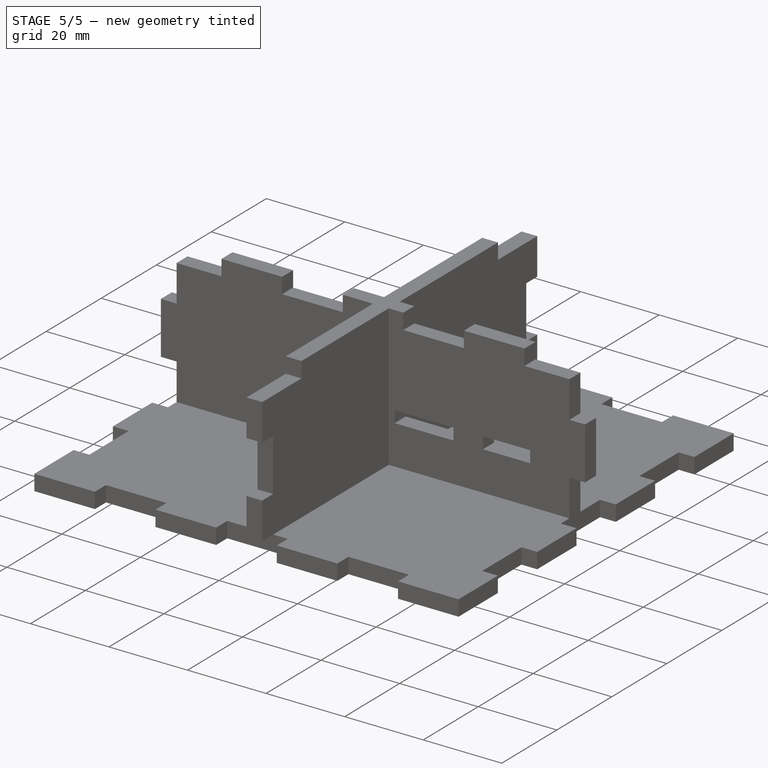
[diagram: stage 5 of 5 — iso view after this stage's code; geometry added in this stage tinted green]
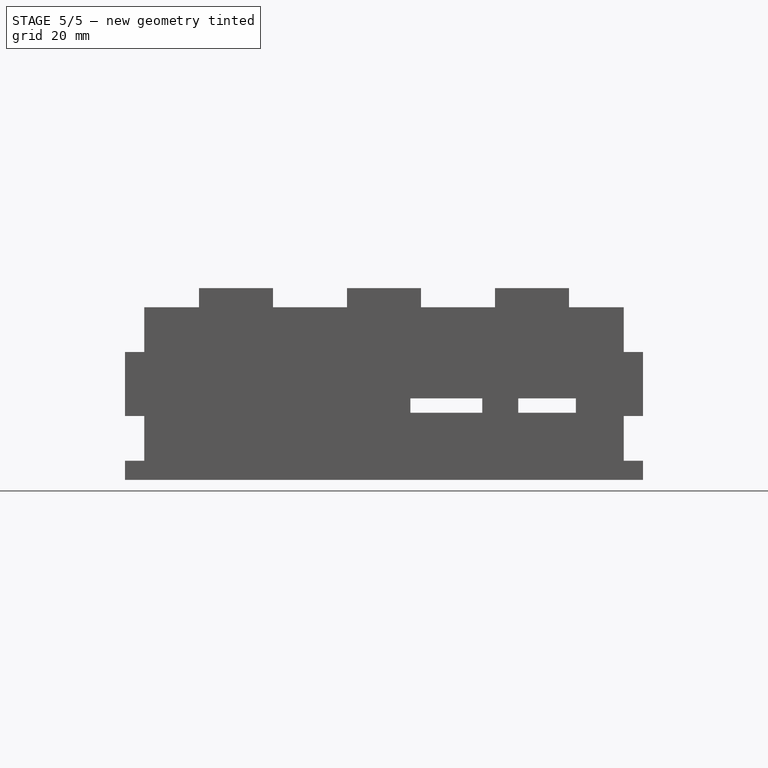
[diagram: stage 5 of 5 — front view after this stage's code; geometry added in this stage tinted green]
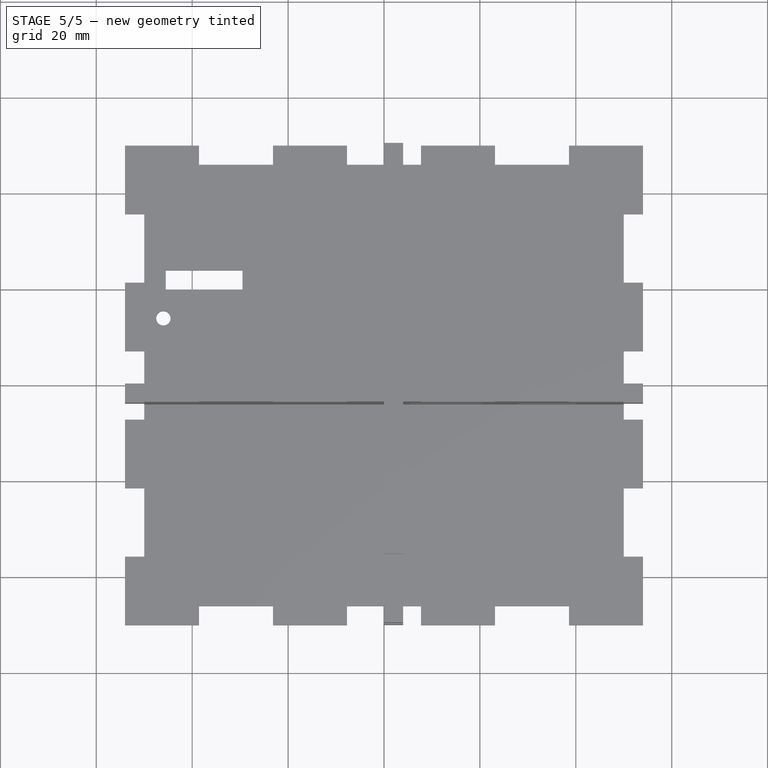
[diagram: stage 5 of 5 — top view after this stage's code; geometry added in this stage tinted green]
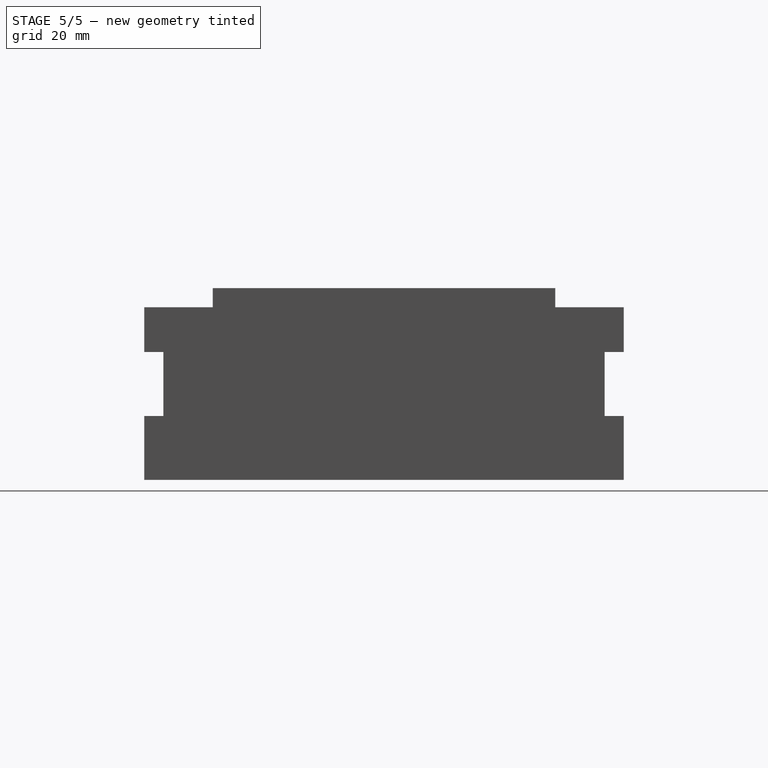
[diagram: stage 5 of 5 — right view after this stage's code; geometry added in this stage tinted green]
FEATURE [PartDesign::Body] Body007  label="TopSide"
  Group = -> [Sketch021,Pad007,Sketch022,Pocket013,Sketch023,Pocket014,Sketch025,Pocket016]
  Origin = -> Origin007
  Placement = pos=(0,50,0) rot=(0,0,1;0rad)
  Tip = -> Pocket016
FEATURE [Sketcher::SketchObject] Sketch026
  ExternalGeometry = -> [Pocket010]
  FullyConstrained = true
  MapMode = 5
  Placement = pos=(0,0,4) rot=(0,0,1;0rad)
  Support = -> [Pocket010]
  sketch-geometry (6):
    g0: Circle CenterX=35 CenterY=-11 CenterZ=0 NormalX=0 NormalY=0 NormalZ=1 AngleXU=0 Radius=6
    g1: Circle CenterX=35 CenterY=-31 CenterZ=0 NormalX=0 NormalY=0 NormalZ=1 AngleXU=0 Radius=6
    g2: Circle CenterX=-10 CenterY=9 CenterZ=0 NormalX=0 NormalY=0 NormalZ=1 AngleXU=0 Radius=6
    g3: Circle CenterX=-10 CenterY=-11 CenterZ=0 NormalX=0 NormalY=0 NormalZ=1 AngleXU=0 Radius=6
    g4: LineSegment StartX=35 StartY=-11 StartZ=0 EndX=35 EndY=-31 EndZ=0
    g5: LineSegment StartX=-10 StartY=9 StartZ=0 EndX=-10 EndY=-11 EndZ=0
  constraints (16):
    c: Equal(g1,g3)
    c: Equal(g3,g2)
    c: Equal(g2,g0)
    c: Diameter(g0) = 12
    c: DistanceX(g1,g-3) = 15
    c: Coincident(g4,g0)
    c: Coincident(g4,g1)
    c: Vertical(g4)
    c: Coincident(g5,g2)
    c: Coincident(g5,g3)
    c: Vertical(g5)
    c: Equal(g5,g4)
    c: DistanceY(g-4,g1) = 15
    c: DistanceY(g4,g4) = 20
    c: DistanceY(g-4,g3) = 35
    c: DistanceX(g-5,g2) = 40
FEATURE [PartDesign::Pocket] Pocket017
  BaseFeature = -> Pocket010
  Direction = (0,0,-1)
  Length = 5
  Length2 = 5
  Profile = -> Sketch026
  ReferenceAxis = -> Sketch026 [N_Axis]
  Type = 2
FEATURE [Sketcher::SketchObject] Sketch027
  ExternalGeometry = -> [Pocket017]
  FullyConstrained = true
  MapMode = 5
  Placement = pos=(0,0,4) rot=(0,0,1;0rad)
  Support = -> [Pocket017]
  sketch-geometry (9):
    g0: LineSegment StartX=27 StartY=7 StartZ=0 EndX=33 EndY=7 EndZ=0
    g1: LineSegment StartX=33 StartY=7 StartZ=0 EndX=33 EndY=1 EndZ=0
    g2: LineSegment StartX=33 StartY=1 StartZ=0 EndX=27 EndY=1 EndZ=0
    g3: LineSegment StartX=27 StartY=1 StartZ=0 EndX=27 EndY=7 EndZ=0
    g4: LineSegment StartX=37 StartY=7 StartZ=0 EndX=43 EndY=7 EndZ=0
    g5: LineSegment StartX=43 StartY=7 StartZ=0 EndX=43 EndY=1 EndZ=0
    g6: LineSegment StartX=43 StartY=1 StartZ=0 EndX=37 EndY=1 EndZ=0
    g7: LineSegment StartX=37 StartY=1 StartZ=0 EndX=37 EndY=7 EndZ=0
    g8: LineSegment StartX=33 StartY=7 StartZ=0 EndX=37 EndY=7 EndZ=0
  constraints (26):
    c: Coincident(g0,g1)
    c: Coincident(g1,g2)
    c: Coincident(g2,g3)
    c: Coincident(g3,g0)
    c: Horizontal(g0)
    c: Horizontal(g2)
    c: Vertical(g1)
    c: Vertical(g3)
    c: Coincident(g4,g5)
    c: Coincident(g5,g6)
    c: Coincident(g6,g7)
    c: Coincident(g7,g4)
    c: Horizontal(g4)
    c: Horizontal(g6)
    c: Vertical(g5)
    c: Vertical(g7)
    c: Equal(g4,g7)
    c: Equal(g7,g0)
    c: Equal(g0,g3)
    c: DistanceY(g5,g5) = 6
    c: Coincident(g8,g0)
    c: Coincident(g8,g4)
    c: Horizontal(g8)
    c: DistanceX(g8,g8) = 4
    c: DistanceX(g5,g-5) = 7
    c: DistanceY(g-6,g5) = 47
FEATURE [PartDesign::Pocket] Pocket018
  BaseFeature = -> Pocket017
  Direction = (0,0,-1)
  Length = 5
  Length2 = 5
  Profile = -> Sketch027
  ReferenceAxis = -> Sketch027 [N_Axis]
  Type = 2
FEATURE [Sketcher::SketchObject] Sketch028
  ExternalGeometry = -> [Pocket018]
  FullyConstrained = true
  MapMode = 5
  Placement = pos=(0,0,4) rot=(0,0,1;0rad)
  Support = -> [Pocket018]
  sketch-geometry (1):
    g0: Circle CenterX=-10 CenterY=-29 CenterZ=0 NormalX=0 NormalY=0 NormalZ=1 AngleXU=0 Radius=4
  constraints (3):
    c: Diameter(g0) = 8
    c: DistanceX(g-4,g0) = 40
    c: DistanceY(g-3,g0) = 17
FEATURE [PartDesign::Pocket] Pocket019
  BaseFeature = -> Pocket018
  Direction = (0,0,-1)
  Length = 5
  Length2 = 5
  Profile = -> Sketch028
  ReferenceAxis = -> Sketch028 [N_Axis]
  Type = 2
FEATURE [Sketcher::SketchObject] Sketch029
  ExternalGeometry = -> [Pocket019]
  FullyConstrained = true
  MapMode = 5
  Placement = pos=(0,0,4) rot=(0,0,1;0rad)
  Support = -> [Pocket019]
  sketch-geometry (14):
    g0: LineSegment StartX=-50 StartY=25 StartZ=0 EndX=-50 EndY=-25 EndZ=0
    g1: LineSegment StartX=-19 StartY=25 StartZ=0 EndX=-19 EndY=-25 EndZ=0
    g2: LineSegment StartX=-50 StartY=-25 StartZ=0 EndX=-42 EndY=-25 EndZ=0
    g3: LineSegment StartX=-19 StartY=-25 StartZ=0 EndX=-27 EndY=-25 EndZ=0
    g4: LineSegment StartX=-27 StartY=-25 StartZ=0 EndX=-27 EndY=-34 EndZ=0
    g5: LineSegment StartX=-42 StartY=-25 StartZ=0 EndX=-42 EndY=-34 EndZ=0
    g6: LineSegment StartX=-42 StartY=-34 StartZ=0 EndX=-27 EndY=-34 EndZ=0
    g7: LineSegment StartX=-50 StartY=25 StartZ=0 EndX=-42 EndY=25 EndZ=0
    g8: LineSegment StartX=-42 StartY=25 StartZ=0 EndX=-42 EndY=34 EndZ=0
    g9: LineSegment StartX=-42 StartY=34 StartZ=0 EndX=-27 EndY=34 EndZ=0
    g10: LineSegment StartX=-27 StartY=34 StartZ=0 EndX=-27 EndY=25 EndZ=0
    g11: LineSegment StartX=-27 StartY=25 StartZ=0 EndX=-19 EndY=25 EndZ=0
    g12: LineSegment StartX=-50 StartY=25 StartZ=0 EndX=-38.5714 EndY=46 EndZ=0
    g13: LineSegment StartX=-50 StartY=-25 StartZ=0 EndX=-38.5714 EndY=-46 EndZ=0
  constraints (39):
    c: Vertical(g1)
    c: Coincident(g3,g1)
    c: Horizontal(g3)
    c: Coincident(g4,g3)
    c: Vertical(g4)
    c: Coincident(g6,g4)
    c: Coincident(g7,g0)
    c: Horizontal(g7)
    c: Coincident(g8,g7)
    c: Vertical(g8)
    c: Coincident(g9,g8)
    c: Horizontal(g9)
    c: Coincident(g10,g9)
    c: Coincident(g11,g10)
    c: Coincident(g11,g1)
    c: Horizontal(g11)
    c: Equal(g8,g10)
    c: Equal(g5,g4)
    c: Equal(g7,g2)
    c: Equal(g2,g3)
    c: Equal(g3,g11)
    c: DistanceX(g0,g1) = 31
    c: DistanceY(g4,g9) = 68
    c: DistanceX(g9,g9) = 15
    c: Horizontal(g6)
    c: Coincident(g6,g5)
    c: Coincident(g5,g2)
    c: Coincident(g0,g2)
    c: Vertical(g10)
    c: Horizontal(g2)
    c: Vertical(g5)
    c: Equal(g8,g5)
    c: DistanceY(g10,g10) = 9
    c: Coincident(g12,g0)
    c: Coincident(g12,g-4)
    c: Coincident(g13,g0)
    c: Coincident(g13,g-10)
    c: Equal(g13,g12)
    c: Tangent(g0,g-6)
FEATURE [PartDesign::Pocket] Pocket020
  BaseFeature = -> Pocket019
  Direction = (0,0,-1)
  Length = 5
  Length2 = 5
  Profile = -> Sketch029
  ReferenceAxis = -> Sketch029 [N_Axis]
  Type = 2
FEATURE [Sketcher::SketchObject] Sketch030
  ExternalGeometry = -> [Pocket020]
  FullyConstrained = true
  MapMode = 5
  Placement = pos=(0,0,4) rot=(0,0,1;0rad)
  Support = -> [Pocket020]
  sketch-geometry (12):
    g0: Circle CenterX=-47 CenterY=32 CenterZ=0 NormalX=0 NormalY=0 NormalZ=1 AngleXU=0 Radius=1.5
    g1: Circle CenterX=-22 CenterY=32 CenterZ=0 NormalX=0 NormalY=0 NormalZ=1 AngleXU=0 Radius=1.5
    g2: Circle CenterX=-47 CenterY=-32 CenterZ=0 NormalX=0 NormalY=0 NormalZ=1 AngleXU=0 Radius=1.5
    g3: Circle CenterX=-22 CenterY=-32 CenterZ=0 NormalX=0 NormalY=0 NormalZ=1 AngleXU=0 Radius=1.5
    g4: LineSegment StartX=-47 StartY=32 StartZ=0 EndX=-22 EndY=32 EndZ=0
    g5: LineSegment StartX=-22 StartY=32 StartZ=0 EndX=-22 EndY=-32 EndZ=0
    g6: LineSegment StartX=-22 StartY=-32 StartZ=0 EndX=-47 EndY=-32 EndZ=0
    g7: LineSegment StartX=-47 StartY=-32 StartZ=0 EndX=-47 EndY=32 EndZ=0
    g8: LineSegment StartX=-47 StartY=32 StartZ=0 EndX=-42 EndY=25 EndZ=0
    g9: LineSegment StartX=-27 StartY=25 StartZ=0 EndX=-22 EndY=32 EndZ=0
    g10: LineSegment StartX=-22 StartY=-32 StartZ=0 EndX=-27 EndY=-25 EndZ=0
    g11: LineSegment StartX=-42 StartY=-25 StartZ=0 EndX=-47 EndY=-32 EndZ=0
  constraints (28):
    c: Equal(g3,g2)
    c: Equal(g2,g0)
    c: Equal(g0,g1)
    c: Diameter(g1) = 3
    c: Coincident(g4,g5)
    c: Coincident(g5,g6)
    c: Coincident(g6,g7)
    c: Coincident(g7,g4)
    c: Horizontal(g4)
    c: Horizontal(g6)
    c: Vertical(g5)
    c: Vertical(g7)
    c: Coincident(g4,g0)
    c: Coincident(g5,g3)
    c: Coincident(g1,g4)
    c: Coincident(g6,g2)
    c: DistanceX(g4,g4) = 25
    c: DistanceY(g5,g5) = 64
    c: Coincident(g8,g0)
    c: Coincident(g8,g-6)
    c: Coincident(g9,g-3)
    c: Coincident(g9,g1)
    c: Coincident(g10,g3)
    c: Coincident(g10,g-5)
    c: Coincident(g11,g-8)
    c: Coincident(g11,g2)
    c: Equal(g11,g10)
    c: Equal(g10,g9)
FEATURE [PartDesign::Pocket] Pocket021
  BaseFeature = -> Pocket020
  Direction = (0,0,-1)
  Length = 0
  Length2 = 5
  Profile = -> Sketch030
  ReferenceAxis = -> Sketch030 [N_Axis]
  Type = 3
  UpToFace = -> Pocket020 [Face2]
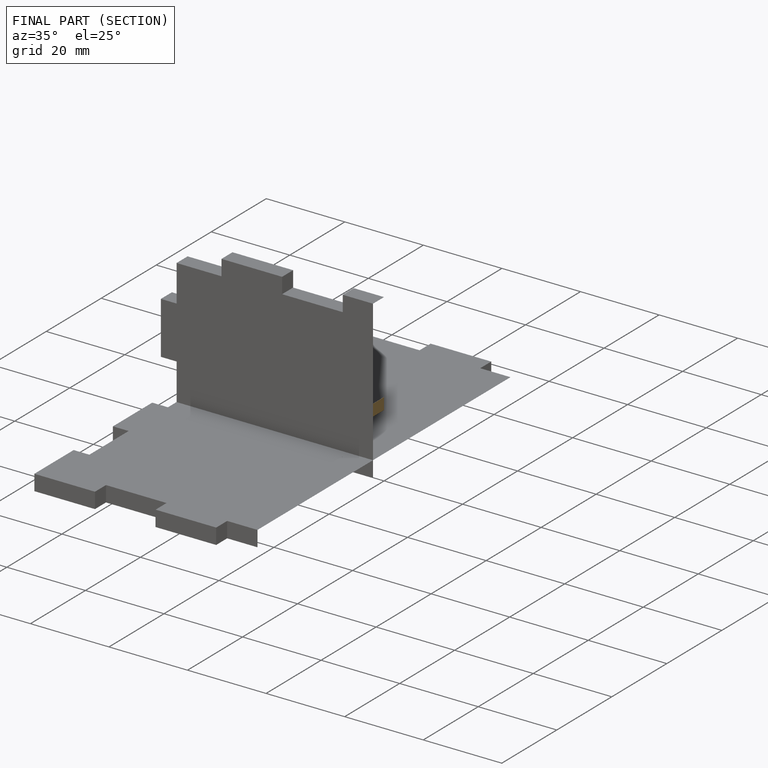
[diagram: finished part — half-section view (interior)]
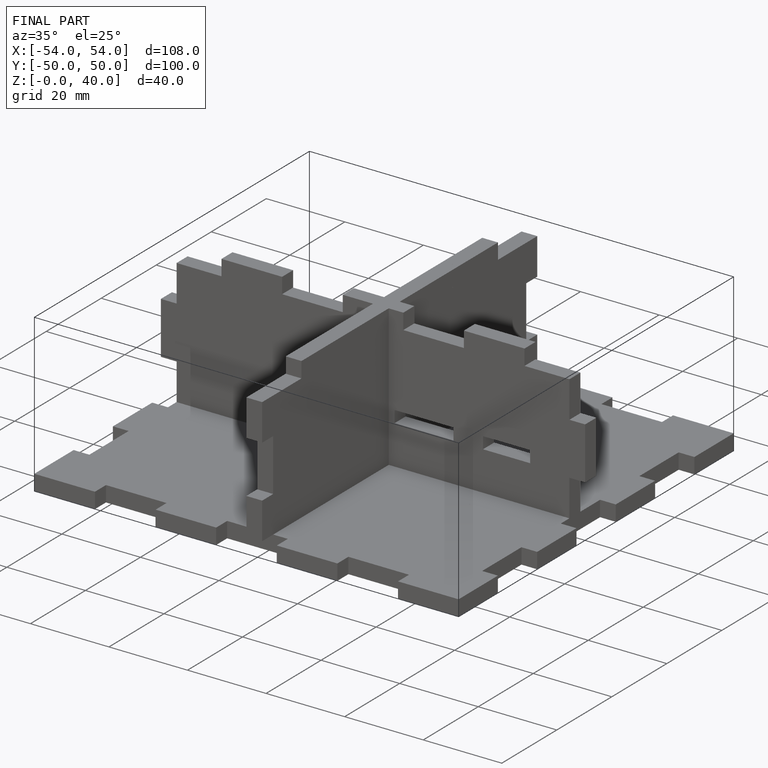
[diagram: finished part — iso view with bounding-box wireframe]
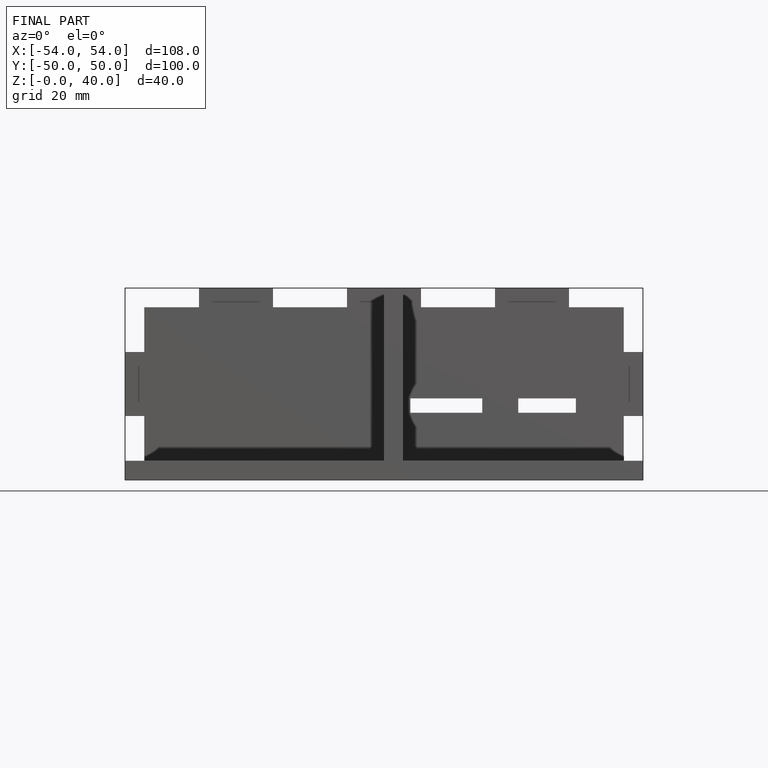
[diagram: finished part — front view with bounding-box wireframe]
